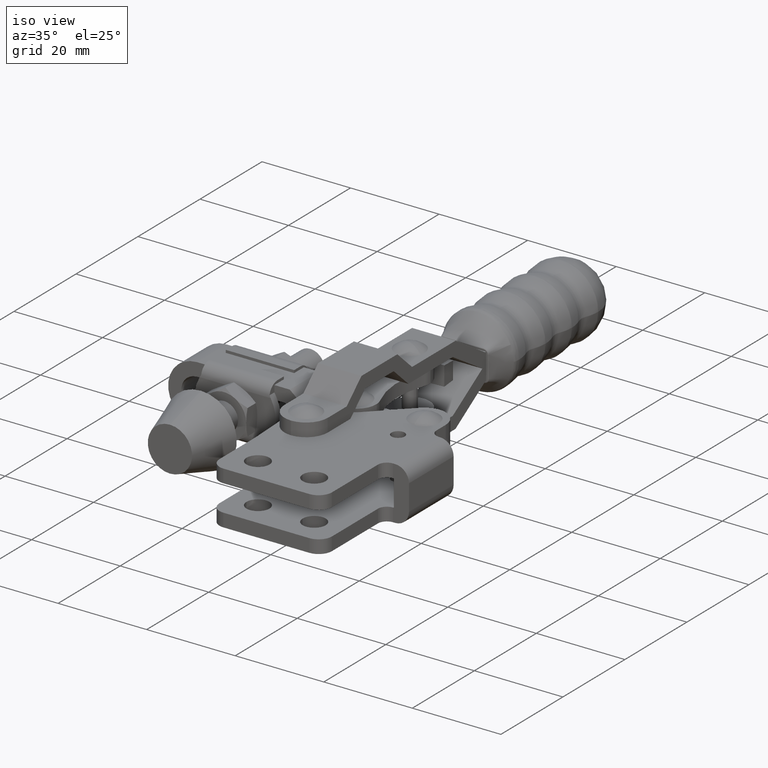
[diagram: clean part render]
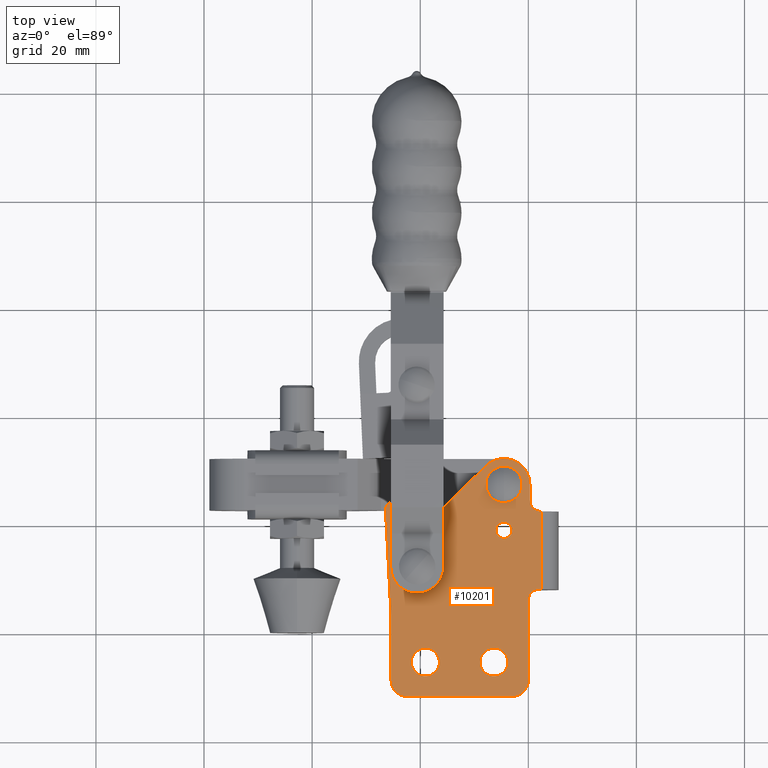
[diagram: tour spotlight — one face highlighted and labeled with its STEP entity id]
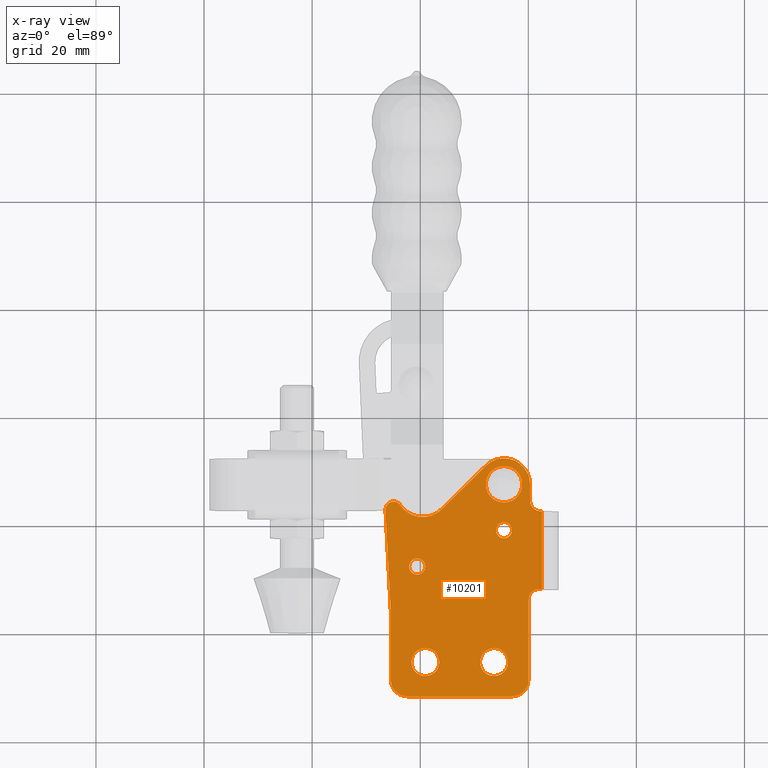
[diagram: x-ray of the same camera — body ghosted, this tour face saturated]
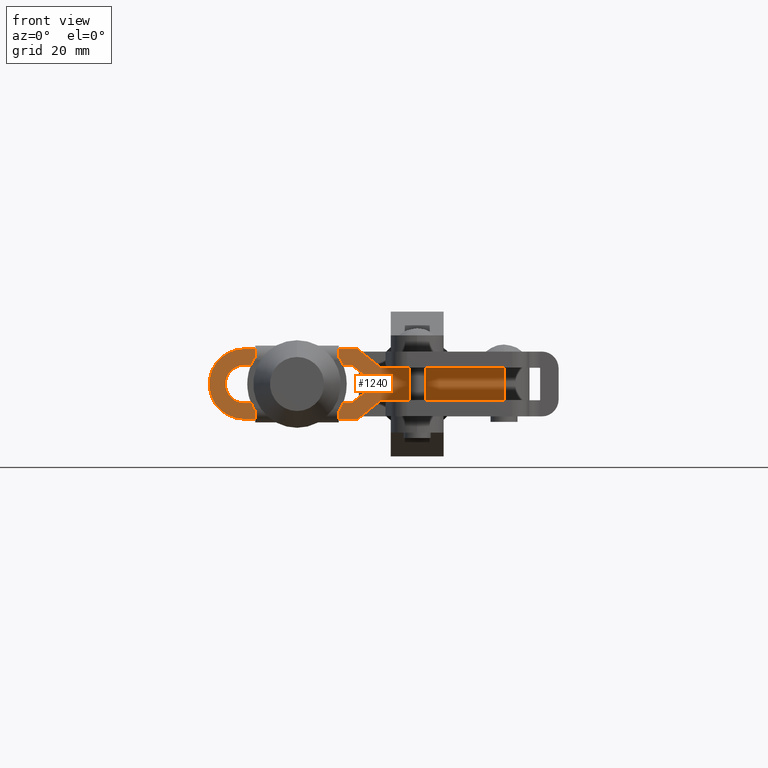
[diagram: tour spotlight — one face highlighted and labeled with its STEP entity id]
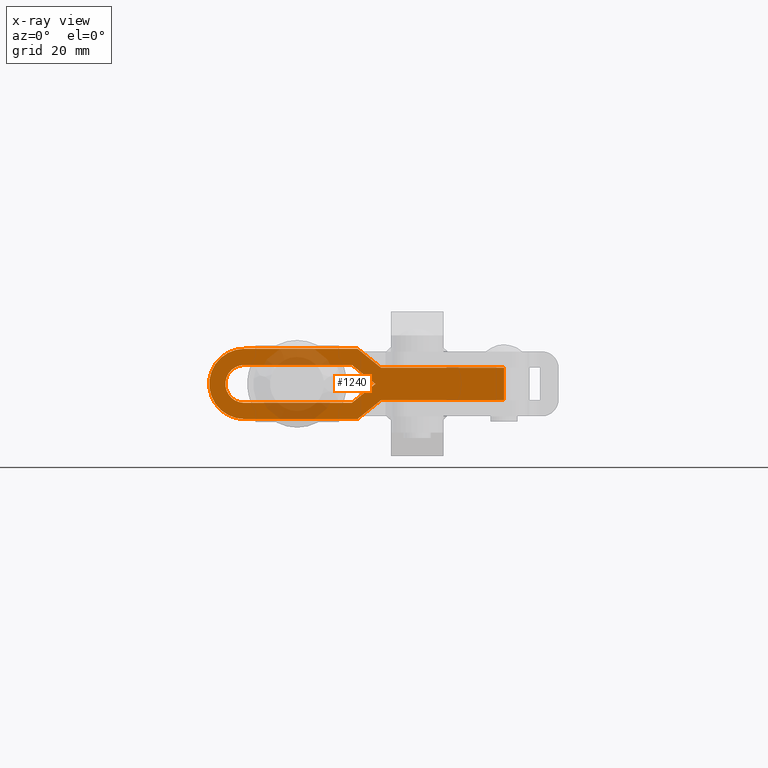
[diagram: x-ray of the same camera — body ghosted, this tour face saturated]
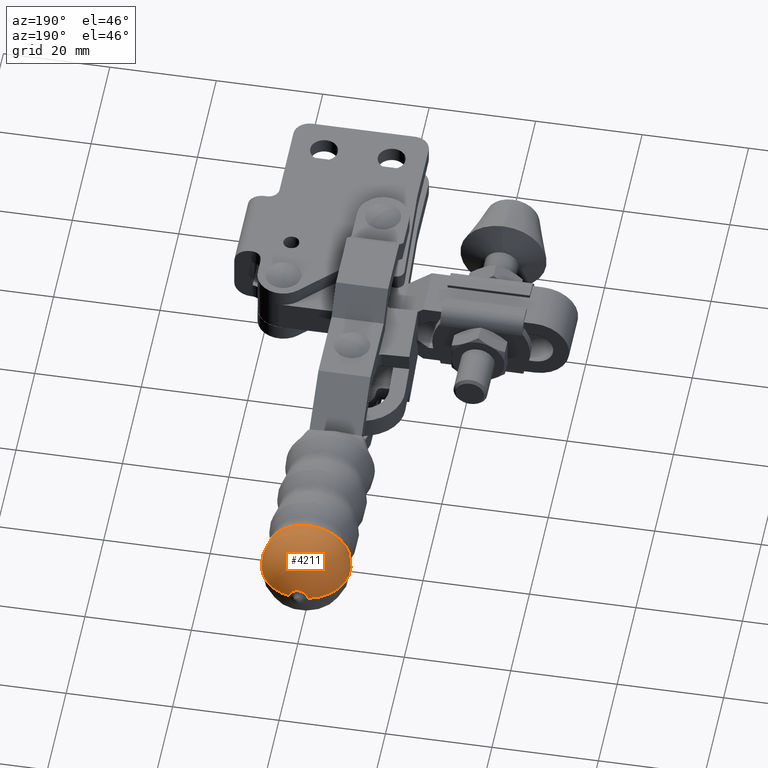
[diagram: tour spotlight — one face highlighted and labeled with its STEP entity id]
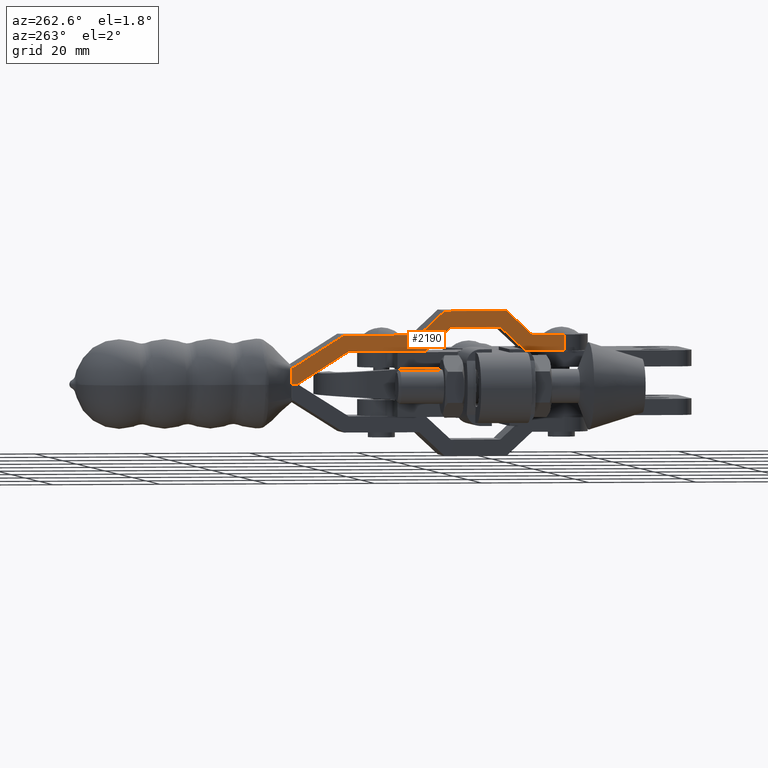
[diagram: tour spotlight — one face highlighted and labeled with its STEP entity id]
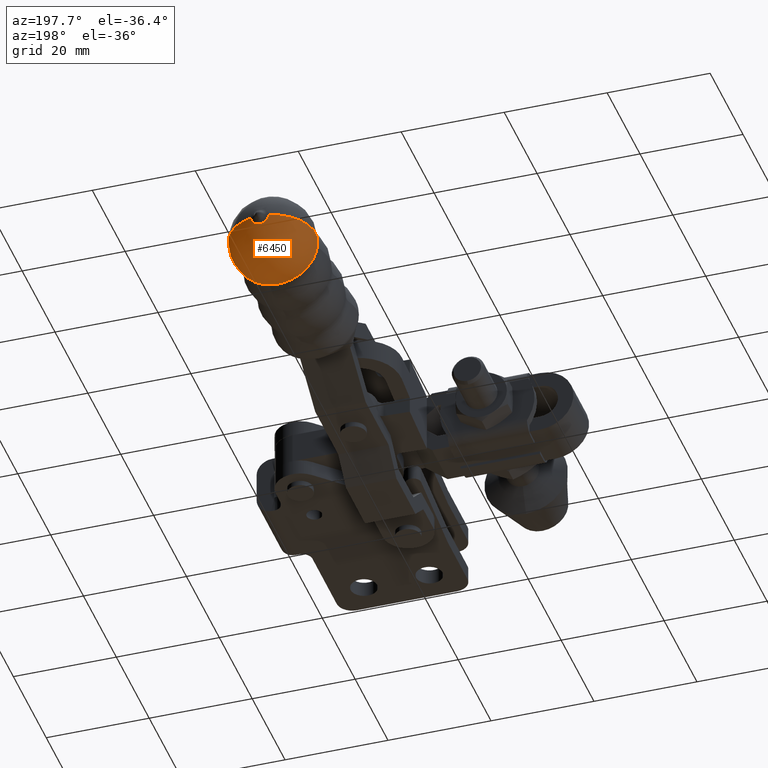
[diagram: tour spotlight — one face highlighted and labeled with its STEP entity id]
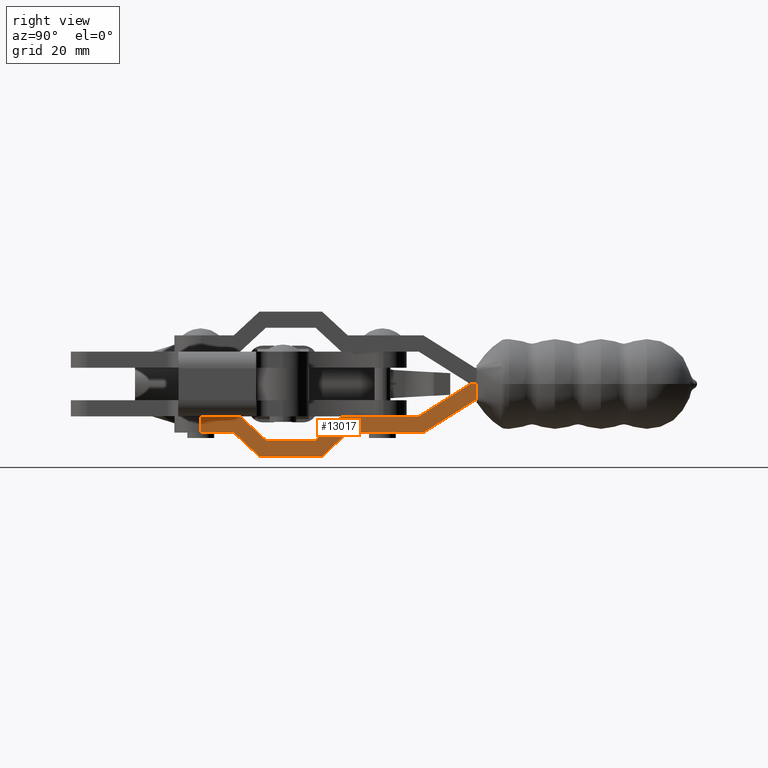
[diagram: tour spotlight — one face highlighted and labeled with its STEP entity id]
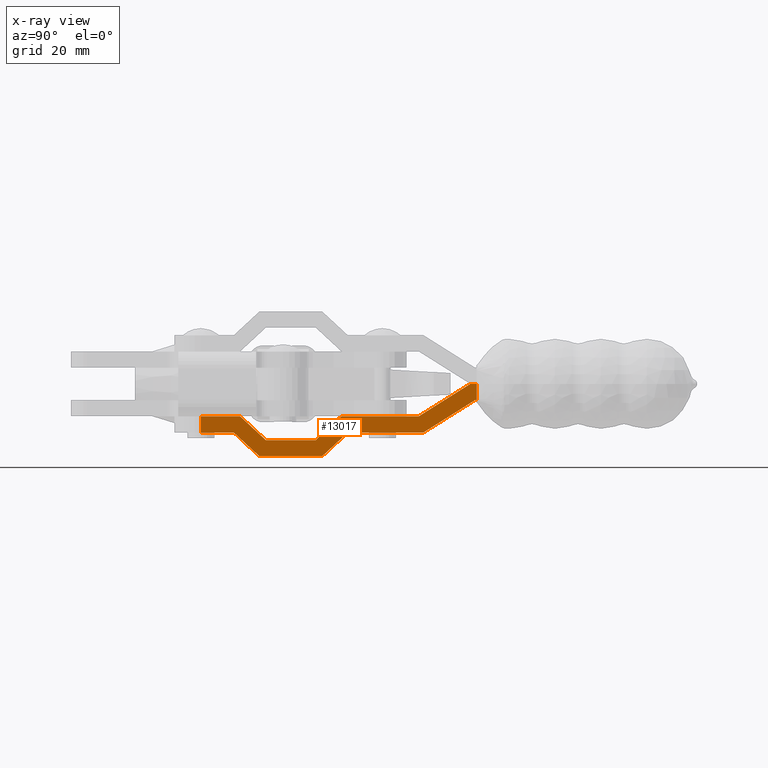
[diagram: x-ray of the same camera — body ghosted, this tour face saturated]
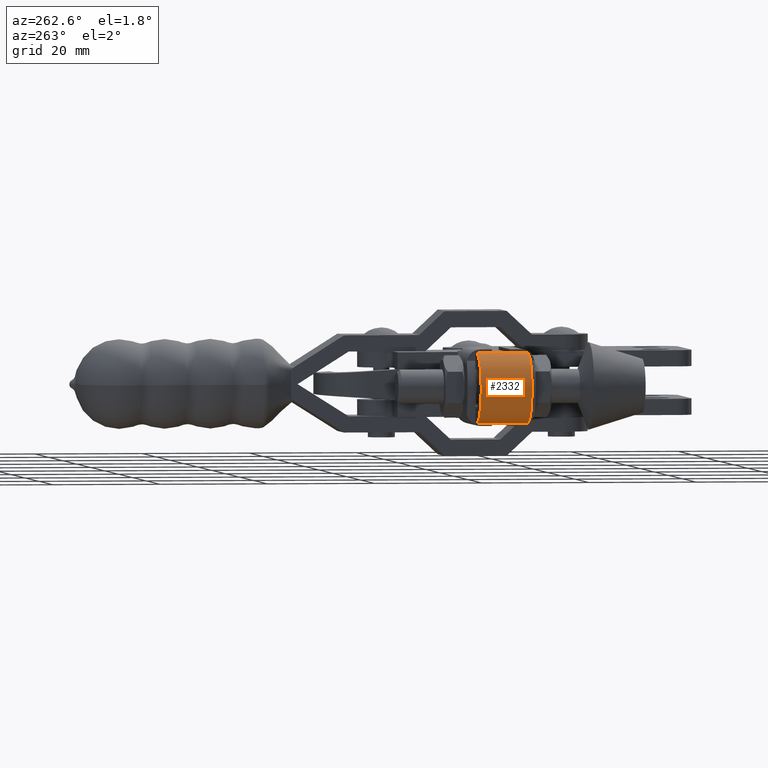
[diagram: tour spotlight — one face highlighted and labeled with its STEP entity id]
A machine part: a face-by-face anatomy tour. The part has 331 B-rep faces; the first image is the clean iso view, then the 7 largest visible faces are spotlighted one at a time (largest first), each with its STEP entity span.

Face 1 — top view, entity #10201. An x-ray twin of the same camera follows (body ghosted, this face saturated) — the face is partly hidden behind the body. In plain terms, the highlighted planar face has unit normal (-0, -0, 1).
Definition (entity closure, byte-faithful):
#78 = ORIENTED_EDGE ( 'NONE', *, *, #9666, .T. ) ;
#83 = DIRECTION ( 'NONE',  ( 1.000000000000000000, 0.0000000000000000000, 3.469446951953635100E-015 ) ) ;
#125 = ORIENTED_EDGE ( 'NONE', *, *, #583, .F. ) ;
#151 = CARTESIAN_POINT ( 'NONE',  ( -8.949999999999498400, -5.449999999999898900, 6.001039891700583200 ) ) ;
#157 = CARTESIAN_POINT ( 'NONE',  ( 4.475586568020162300E-013, 6.050000000000232500, 6.001039891700616900 ) ) ;
#188 = DIRECTION ( 'NONE',  ( 3.613946018757868500E-015, 1.204669080539461900E-016, -1.000000000000000000 ) ) ;
#207 = VECTOR ( 'NONE', #5301, 1000.000000000000100 ) ;
#244 = EDGE_CURVE ( 'NONE', #8299, #10795, #10401, .T. ) ;
#319 = CARTESIAN_POINT ( 'NONE',  ( -26.42049903530773100, 22.67228158241329100, 6.001039891700523700 ) ) ;
#555 = VERTEX_POINT ( 'NONE', #4379 ) ;
#583 = EDGE_CURVE ( 'NONE', #3311, #6089, #8067, .T. ) ;
#631 = AXIS2_PLACEMENT_3D ( 'NONE', #5259, #12788, #5172 ) ;
#695 = CARTESIAN_POINT ( 'NONE',  ( 2.081039891701238700, 8.050000000000233400, 6.001039891700624900 ) ) ;
#704 = CARTESIAN_POINT ( 'NONE',  ( -25.39999999999953000, 3.200000000000049900, 6.001039891700524500 ) ) ;
#915 = EDGE_CURVE ( 'NONE', #10998, #555, #8988, .T. ) ;
#945 = VERTEX_POINT ( 'NONE', #2620 ) ;
#1076 = VERTEX_POINT ( 'NONE', #3292 ) ;
#1111 = EDGE_CURVE ( 'NONE', #12454, #3337, #2672, .T. ) ;
#1135 = CARTESIAN_POINT ( 'NONE',  ( 2.000000000000449400, 6.050000000000232500, 6.001039891700624900 ) ) ;
#1286 = LINE ( 'NONE', #2739, #11806 ) ;
#1455 = EDGE_CURVE ( 'NONE', #10811, #6922, #6034, .T. ) ;
#1525 = CARTESIAN_POINT ( 'NONE',  ( 11.20000000000054600, 6.050000000000260100, 6.001039891700657800 ) ) ;
#1596 = DIRECTION ( 'NONE',  ( 1.000000000000000000, 0.0000000000000000000, 3.469446951953619300E-015 ) ) ;
#1657 = CARTESIAN_POINT ( 'NONE',  ( -19.53999999999950200, 26.39469887254794100, 6.001039891700549400 ) ) ;
#1741 = ORIENTED_EDGE ( 'NONE', *, *, #5555, .T. ) ;
#1744 = CARTESIAN_POINT ( 'NONE',  ( 2.081039891701237800, 22.45000000000006300, 6.001039891700625800 ) ) ;
#1821 = ORIENTED_EDGE ( 'NONE', *, *, #7424, .T. ) ;
#1866 = EDGE_CURVE ( 'NONE', #3168, #3021, #6345, .T. ) ;
#1913 = AXIS2_PLACEMENT_3D ( 'NONE', #1657, #188, #4267 ) ;
#1925 = EDGE_CURVE ( 'NONE', #3173, #2675, #11061, .T. ) ;
#1930 = DIRECTION ( 'NONE',  ( 1.000000000000000000, 0.0000000000000000000, 3.669607353027844400E-015 ) ) ;
#2044 = ORIENTED_EDGE ( 'NONE', *, *, #1866, .T. ) ;
#2060 = VECTOR ( 'NONE', #8840, 1000.000000000000000 ) ;
#2134 = DIRECTION ( 'NONE',  ( -3.613948041024117200E-015, -1.204669080539461900E-016, 1.000000000000000000 ) ) ;
#2196 = CARTESIAN_POINT ( 'NONE',  ( 2.501039891701238200, 22.45000000000006300, 6.001039891700624900 ) ) ;
#2209 = FACE_BOUND ( 'NONE', #12411, .T. ) ;
#2248 = CIRCLE ( 'NONE', #10053, 1.500000000000024000 ) ;
#2316 = ORIENTED_EDGE ( 'NONE', *, *, #7655, .F. ) ;
#2370 = EDGE_LOOP ( 'NONE', ( #2316, #5104 ) ) ;
#2584 = EDGE_LOOP ( 'NONE', ( #125, #11876 ) ) ;
#2592 = DIRECTION ( 'NONE',  ( 1.000000000000000000, -1.204669080539466100E-016, 3.613946018757868500E-015 ) ) ;
#2620 = CARTESIAN_POINT ( 'NONE',  ( 0.3000000000005411700, 27.45000000000009500, 6.001039891700620500 ) ) ;
#2672 = CIRCLE ( 'NONE', #11879, 1.499999999999997800 ) ;
#2675 = VERTEX_POINT ( 'NONE', #8545 ) ;
#2739 = CARTESIAN_POINT ( 'NONE',  ( 2.081039891701238700, 6.050000000000260100, 6.001039891700624900 ) ) ;
#3018 = ORIENTED_EDGE ( 'NONE', *, *, #9895, .F. ) ;
#3021 = VERTEX_POINT ( 'NONE', #10221 ) ;
#3165 = CARTESIAN_POINT ( 'NONE',  ( 2.501039891701239500, 8.050000000000233400, 6.001039891700624900 ) ) ;
#3168 = VERTEX_POINT ( 'NONE', #9450 ) ;
#3173 = VERTEX_POINT ( 'NONE', #10885 ) ;
#3175 = DIRECTION ( 'NONE',  ( 9.093002175972266800E-015, -1.000000000000000000, -1.204669080539133300E-016 ) ) ;
#3187 = DIRECTION ( 'NONE',  ( 1.000000000000000000, 0.0000000000000000000, 3.469446951953611000E-015 ) ) ;
#3218 = VECTOR ( 'NONE', #4407, 1000.000000000000000 ) ;
#3224 = DIRECTION ( 'NONE',  ( -1.000000000000000000, 0.0000000000000000000, -1.224646799147353200E-016 ) ) ;
#3279 = DIRECTION ( 'NONE',  ( -6.008271998254058300E-017, 1.000000000000000000, 1.204669080539459700E-016 ) ) ;
#3292 = CARTESIAN_POINT ( 'NONE',  ( -4.499999999999483100, 24.08696565584005700, 6.001039891700603600 ) ) ;
#3311 = VERTEX_POINT ( 'NONE', #7906 ) ;
#3333 = ORIENTED_EDGE ( 'NONE', *, *, #7054, .T. ) ;
#3337 = VERTEX_POINT ( 'NONE', #319 ) ;
#3361 = CIRCLE ( 'NONE', #5492, 1.999999999999988000 ) ;
#3383 = EDGE_CURVE ( 'NONE', #10795, #7449, #1286, .T. ) ;
#3391 = VERTEX_POINT ( 'NONE', #157 ) ;
#3441 = ORIENTED_EDGE ( 'NONE', *, *, #1925, .T. ) ;
#3452 = DIRECTION ( 'NONE',  ( 1.000000000000000000, 0.0000000000000000000, 3.669607353027841200E-015 ) ) ;
#3489 = DIRECTION ( 'NONE',  ( -3.613946018757868500E-015, -1.204669080539461900E-016, 1.000000000000000000 ) ) ;
#3581 = PLANE ( 'NONE',  #7955 ) ;
#3622 = DIRECTION ( 'NONE',  ( -3.613946018757868500E-015, -1.204669080539461900E-016, 1.000000000000000000 ) ) ;
#3691 = CARTESIAN_POINT ( 'NONE',  ( 2.000000000000450300, 8.050000000000233400, 6.001039891700624900 ) ) ;
#3781 = DIRECTION ( 'NONE',  ( -3.613946018757868500E-015, -1.204669080539461900E-016, 1.000000000000000000 ) ) ;
#3886 = CARTESIAN_POINT ( 'NONE',  ( -7.867654024446814300, 30.87036640897205700, 6.001039891700591200 ) ) ;
#3939 = EDGE_CURVE ( 'NONE', #1076, #10020, #9013, .T. ) ;
#4057 = VECTOR ( 'NONE', #3224, 1000.000000000000000 ) ;
#4090 = DIRECTION ( 'NONE',  ( -3.613946018757868500E-015, -1.204669080539461900E-016, 1.000000000000000000 ) ) ;
#4099 = AXIS2_PLACEMENT_3D ( 'NONE', #11237, #5199, #12251 ) ;
#4160 = AXIS2_PLACEMENT_3D ( 'NONE', #8550, #4476, #12504 ) ;
#4256 = EDGE_CURVE ( 'NONE', #6089, #3311, #4736, .T. ) ;
#4258 = LINE ( 'NONE', #4549, #9337 ) ;
#4267 = DIRECTION ( 'NONE',  ( 1.000000000000000000, 0.0000000000000000000, 3.642919299551281500E-015 ) ) ;
#4292 = ORIENTED_EDGE ( 'NONE', *, *, #10456, .T. ) ;
#4341 = AXIS2_PLACEMENT_3D ( 'NONE', #9276, #2134, #12306 ) ;
#4350 = CARTESIAN_POINT ( 'NONE',  ( -2.999999999999473800, 18.95000000000006300, 6.001039891700608000 ) ) ;
#4370 = DIRECTION ( 'NONE',  ( -3.613946018757868500E-015, -1.204669080539461900E-016, 1.000000000000000000 ) ) ;
#4379 = CARTESIAN_POINT ( 'NONE',  ( -3.749999999999470200, -5.449999999999899800, 6.001039891700601800 ) ) ;
#4383 = ORIENTED_EDGE ( 'NONE', *, *, #13088, .F. ) ;
#4407 = DIRECTION ( 'NONE',  ( 1.000000000000000000, 1.609537245751679200E-015, 3.609795379043373300E-015 ) ) ;
#4469 = EDGE_LOOP ( 'NONE', ( #3018, #6361 ) ) ;
#4476 = DIRECTION ( 'NONE',  ( -3.613946018757868500E-015, -1.204669080539461900E-016, 1.000000000000000000 ) ) ;
#4519 = VERTEX_POINT ( 'NONE', #5317 ) ;
#4549 = CARTESIAN_POINT ( 'NONE',  ( 4.475586568020162300E-013, 6.050000000000232500, 6.001039891700616900 ) ) ;
#4576 = EDGE_CURVE ( 'NONE', #5651, #10276, #6799, .T. ) ;
#4671 = EDGE_CURVE ( 'NONE', #555, #10998, #9139, .T. ) ;
#4675 = ORIENTED_EDGE ( 'NONE', *, *, #5537, .T. ) ;
#4736 = CIRCLE ( 'NONE', #4341, 1.500000000000001300 ) ;
#4739 = CARTESIAN_POINT ( 'NONE',  ( -22.39999999999941200, -11.79999999999992300, 6.001039891700534300 ) ) ;
#4787 = AXIS2_PLACEMENT_3D ( 'NONE', #12575, #10007, #9007 ) ;
#4830 = LINE ( 'NONE', #3691, #2060 ) ;
#4878 = CARTESIAN_POINT ( 'NONE',  ( 2.501039891701239500, 22.45000000000006300, 6.001039891700624900 ) ) ;
#4932 = VECTOR ( 'NONE', #5895, 1000.000000000000000 ) ;
#4959 = FACE_OUTER_BOUND ( 'NONE', #8425, .T. ) ;
#5101 = VECTOR ( 'NONE', #5437, 1000.000000000000000 ) ;
#5104 = ORIENTED_EDGE ( 'NONE', *, *, #6639, .F. ) ;
#5172 = DIRECTION ( 'NONE',  ( 1.000000000000000000, 0.0000000000000000000, 3.469446951953611000E-015 ) ) ;
#5199 = DIRECTION ( 'NONE',  ( -3.613946018757868500E-015, -1.204669080539461900E-016, 1.000000000000000000 ) ) ;
#5218 = DIRECTION ( 'NONE',  ( -3.613946018757868500E-015, -1.204669080539461900E-016, 1.000000000000000000 ) ) ;
#5243 = LINE ( 'NONE', #4878, #4932 ) ;
#5259 = CARTESIAN_POINT ( 'NONE',  ( -2.999999999999444000, -8.799999999999885200, 6.001039891700604500 ) ) ;
#5301 = DIRECTION ( 'NONE',  ( -0.7125763352024931900, -0.7015945884265242200, -2.659731340441247100E-015 ) ) ;
#5317 = CARTESIAN_POINT ( 'NONE',  ( 0.3000000000005836300, 24.45000000000009200, 6.001039891700620500 ) ) ;
#5364 = AXIS2_PLACEMENT_3D ( 'NONE', #9745, #7728, #3187 ) ;
#5437 = DIRECTION ( 'NONE',  ( 1.204669080539461700E-016, 1.000000000000000000, 1.204669080539466400E-016 ) ) ;
#5492 = AXIS2_PLACEMENT_3D ( 'NONE', #12293, #6280, #83 ) ;
#5537 = EDGE_CURVE ( 'NONE', #2675, #3168, #8636, .T. ) ;
#5555 = EDGE_CURVE ( 'NONE', #3391, #9748, #10046, .T. ) ;
#5651 = VERTEX_POINT ( 'NONE', #3165 ) ;
#5751 = AXIS2_PLACEMENT_3D ( 'NONE', #11262, #5218, #12276 ) ;
#5787 = ORIENTED_EDGE ( 'NONE', *, *, #10747, .F. ) ;
#5803 = DIRECTION ( 'NONE',  ( 1.000000000000000000, 0.0000000000000000000, 3.669607353027844400E-015 ) ) ;
#5895 = DIRECTION ( 'NONE',  ( -1.183291357831517700E-030, -1.000000000000000000, 8.961354157610672400E-033 ) ) ;
#5913 = VECTOR ( 'NONE', #6170, 1000.000000000000000 ) ;
#6034 = LINE ( 'NONE', #9152, #207 ) ;
#6089 = VERTEX_POINT ( 'NONE', #8554 ) ;
#6170 = DIRECTION ( 'NONE',  ( 0.05233595624293695100, -0.9986295347545742800, 6.883750835881365700E-017 ) ) ;
#6280 = DIRECTION ( 'NONE',  ( 3.613946018757868500E-015, 1.204669080539461900E-016, -1.000000000000000000 ) ) ;
#6320 = CARTESIAN_POINT ( 'NONE',  ( -4.499999999999512400, 30.81303434416014000, 6.001039891700603600 ) ) ;
#6345 = CIRCLE ( 'NONE', #631, 3.000000000000002700 ) ;
#6361 = ORIENTED_EDGE ( 'NONE', *, *, #3939, .F. ) ;
#6398 = EDGE_CURVE ( 'NONE', #6722, #3173, #12069, .T. ) ;
#6449 = EDGE_LOOP ( 'NONE', ( #8628, #4383 ) ) ;
#6463 = CARTESIAN_POINT ( 'NONE',  ( 2.501039891701238200, 8.050000000000233400, 6.001039891700624900 ) ) ;
#6639 = EDGE_CURVE ( 'NONE', #12983, #12208, #8768, .T. ) ;
#6722 = VERTEX_POINT ( 'NONE', #704 ) ;
#6746 = CARTESIAN_POINT ( 'NONE',  ( -24.92255473317588300, 22.75078551677769000, 6.001039891700529000 ) ) ;
#6752 = AXIS2_PLACEMENT_3D ( 'NONE', #9393, #3489, #3452 ) ;
#6799 = LINE ( 'NONE', #6463, #4057 ) ;
#6922 = VERTEX_POINT ( 'NONE', #8762 ) ;
#7054 = EDGE_CURVE ( 'NONE', #4519, #945, #7814, .T. ) ;
#7424 = EDGE_CURVE ( 'NONE', #6922, #12454, #11573, .T. ) ;
#7449 = VERTEX_POINT ( 'NONE', #10230 ) ;
#7494 = ORIENTED_EDGE ( 'NONE', *, *, #4576, .F. ) ;
#7655 = EDGE_CURVE ( 'NONE', #12208, #12983, #11870, .T. ) ;
#7728 = DIRECTION ( 'NONE',  ( -3.613948041024117200E-015, -1.204669080539461900E-016, 1.000000000000000000 ) ) ;
#7729 = CARTESIAN_POINT ( 'NONE',  ( -16.44999999999951600, -5.449999999999898000, 6.001039891700556500 ) ) ;
#7738 = CARTESIAN_POINT ( 'NONE',  ( -19.04999999999952800, -5.449999999999898000, 6.001039891700547600 ) ) ;
#7750 = DIRECTION ( 'NONE',  ( -3.613946018757868500E-015, -1.204669080539461900E-016, 1.000000000000000000 ) ) ;
#7763 = VECTOR ( 'NONE', #12356, 1000.000000000000000 ) ;
#7764 = DIRECTION ( 'NONE',  ( 1.000000000000000000, 0.0000000000000000000, 3.669607353027841200E-015 ) ) ;
#7814 = LINE ( 'NONE', #9685, #5101 ) ;
#7819 = EDGE_CURVE ( 'NONE', #3021, #3391, #4258, .T. ) ;
#7906 = CARTESIAN_POINT ( 'NONE',  ( -19.06037234350177200, 12.23344415514951100, 6.001039891700549400 ) ) ;
#7910 = CARTESIAN_POINT ( 'NONE',  ( -5.999999999999521300, 18.95000000000006300, 6.001039891700597400 ) ) ;
#7955 = AXIS2_PLACEMENT_3D ( 'NONE', #1525, #8693, #2592 ) ;
#7977 = FACE_BOUND ( 'NONE', #4469, .T. ) ;
#8067 = CIRCLE ( 'NONE', #5364, 1.500000000000001300 ) ;
#8154 = VERTEX_POINT ( 'NONE', #7910 ) ;
#8269 = AXIS2_PLACEMENT_3D ( 'NONE', #1135, #12434, #8616 ) ;
#8299 = VERTEX_POINT ( 'NONE', #13112 ) ;
#8330 = ORIENTED_EDGE ( 'NONE', *, *, #6398, .T. ) ;
#8425 = EDGE_LOOP ( 'NONE', ( #3441, #4675, #2044, #8925, #1741, #78, #7494, #5787, #8868, #12665, #9646, #3333, #10512, #10329, #1821, #12573, #4292, #8330 ) ) ;
#8545 = CARTESIAN_POINT ( 'NONE',  ( -22.39999999999941200, -11.79999999999992300, 6.001039891700534300 ) ) ;
#8550 = CARTESIAN_POINT ( 'NONE',  ( -4.499999999999497300, 27.45000000000009900, 6.001039891700603600 ) ) ;
#8554 = CARTESIAN_POINT ( 'NONE',  ( -22.06037234350177600, 12.23344415514951000, 6.001039891700538800 ) ) ;
#8616 = DIRECTION ( 'NONE',  ( 1.000000000000000000, 0.0000000000000000000, 3.469446951953611000E-015 ) ) ;
#8628 = ORIENTED_EDGE ( 'NONE', *, *, #12979, .F. ) ;
#8636 = LINE ( 'NONE', #4739, #3218 ) ;
#8667 = CARTESIAN_POINT ( 'NONE',  ( -23.68042671782749800, 23.59168859887851300, 6.001039891700533400 ) ) ;
#8693 = DIRECTION ( 'NONE',  ( -3.613946018757868500E-015, -1.204669080539461900E-016, 1.000000000000000000 ) ) ;
#8762 = CARTESIAN_POINT ( 'NONE',  ( -16.03202705786687000, 22.83181719653546100, 6.001039891700561000 ) ) ;
#8768 = CIRCLE ( 'NONE', #10668, 2.600000000000012100 ) ;
#8840 = DIRECTION ( 'NONE',  ( 1.000000000000000000, -1.204669080539466100E-016, 3.613946018757868500E-015 ) ) ;
#8868 = ORIENTED_EDGE ( 'NONE', *, *, #244, .T. ) ;
#8925 = ORIENTED_EDGE ( 'NONE', *, *, #7819, .T. ) ;
#8988 = CIRCLE ( 'NONE', #6752, 2.600000000000014300 ) ;
#9007 = DIRECTION ( 'NONE',  ( 1.000000000000000000, 0.0000000000000000000, 3.469446951953611000E-015 ) ) ;
#9013 = CIRCLE ( 'NONE', #4160, 3.363034344160041700 ) ;
#9085 = CIRCLE ( 'NONE', #4099, 3.363034344160041700 ) ;
#9139 = CIRCLE ( 'NONE', #12900, 2.600000000000014300 ) ;
#9152 = CARTESIAN_POINT ( 'NONE',  ( -16.03202705786687000, 22.83181719653546100, 6.001039891700561000 ) ) ;
#9276 = CARTESIAN_POINT ( 'NONE',  ( -20.56037234350177200, 12.23344415514951100, 6.001039891700544100 ) ) ;
#9337 = VECTOR ( 'NONE', #12692, 1000.000000000000000 ) ;
#9393 = CARTESIAN_POINT ( 'NONE',  ( -6.349999999999484500, -5.449999999999899800, 6.001039891700592000 ) ) ;
#9450 = CARTESIAN_POINT ( 'NONE',  ( -2.999999999999444000, -11.79999999999989100, 6.001039891700604500 ) ) ;
#9646 = ORIENTED_EDGE ( 'NONE', *, *, #9925, .T. ) ;
#9666 = EDGE_CURVE ( 'NONE', #9748, #10276, #4830, .T. ) ;
#9685 = CARTESIAN_POINT ( 'NONE',  ( 0.3000000000005836300, 27.45000000000009500, 6.001039891700620500 ) ) ;
#9745 = CARTESIAN_POINT ( 'NONE',  ( -20.56037234350177200, 12.23344415514951100, 6.001039891700544100 ) ) ;
#9748 = VERTEX_POINT ( 'NONE', #12920 ) ;
#9839 = CARTESIAN_POINT ( 'NONE',  ( -4.499999999999497300, 18.95000000000006300, 6.001039891700602700 ) ) ;
#9895 = EDGE_CURVE ( 'NONE', #10020, #1076, #9085, .T. ) ;
#9925 = EDGE_CURVE ( 'NONE', #7449, #4519, #3361, .T. ) ;
#9997 = LINE ( 'NONE', #12173, #5913 ) ;
#9999 = ORIENTED_EDGE ( 'NONE', *, *, #915, .F. ) ;
#10007 = DIRECTION ( 'NONE',  ( -3.613948041024120400E-015, -1.204669080539462900E-016, 1.000000000000000000 ) ) ;
#10008 = FACE_BOUND ( 'NONE', #2370, .T. ) ;
#10020 = VERTEX_POINT ( 'NONE', #6320 ) ;
#10046 = CIRCLE ( 'NONE', #8269, 2.000000000000001800 ) ;
#10053 = AXIS2_PLACEMENT_3D ( 'NONE', #9839, #3781, #10859 ) ;
#10201 = ADVANCED_FACE ( 'NONE', ( #10307, #12683, #10008, #2209, #7977, #4959 ), #3581, .T. ) ;
#10221 = CARTESIAN_POINT ( 'NONE',  ( 5.577135975265434800E-013, -8.799999999999890600, 6.001039891700615100 ) ) ;
#10230 = CARTESIAN_POINT ( 'NONE',  ( 2.081039891701236900, 22.46202201446466200, 6.001039891700625800 ) ) ;
#10276 = VERTEX_POINT ( 'NONE', #695 ) ;
#10294 = AXIS2_PLACEMENT_3D ( 'NONE', #10407, #4370, #11450 ) ;
#10307 = FACE_BOUND ( 'NONE', #2584, .T. ) ;
#10329 = ORIENTED_EDGE ( 'NONE', *, *, #1455, .T. ) ;
#10401 = LINE ( 'NONE', #2196, #7763 ) ;
#10407 = CARTESIAN_POINT ( 'NONE',  ( -4.499999999999497300, 27.45000000000009500, 6.001039891700603600 ) ) ;
#10456 = EDGE_CURVE ( 'NONE', #3337, #6722, #9997, .T. ) ;
#10512 = ORIENTED_EDGE ( 'NONE', *, *, #11042, .T. ) ;
#10661 = CARTESIAN_POINT ( 'NONE',  ( -21.64999999999954000, -5.449999999999897100, 6.001039891700537900 ) ) ;
#10668 = AXIS2_PLACEMENT_3D ( 'NONE', #7738, #3622, #5803 ) ;
#10747 = EDGE_CURVE ( 'NONE', #8299, #5651, #5243, .T. ) ;
#10795 = VERTEX_POINT ( 'NONE', #1744 ) ;
#10811 = VERTEX_POINT ( 'NONE', #3886 ) ;
#10859 = DIRECTION ( 'NONE',  ( 1.000000000000000000, 0.0000000000000000000, 3.469446951953558600E-015 ) ) ;
#10885 = CARTESIAN_POINT ( 'NONE',  ( -25.39999999999941900, -8.799999999999917200, 6.001039891700523700 ) ) ;
#10998 = VERTEX_POINT ( 'NONE', #151 ) ;
#11042 = EDGE_CURVE ( 'NONE', #945, #10811, #13116, .T. ) ;
#11061 = CIRCLE ( 'NONE', #4787, 3.000000000000002700 ) ;
#11143 = CIRCLE ( 'NONE', #5751, 1.500000000000024000 ) ;
#11237 = CARTESIAN_POINT ( 'NONE',  ( -4.499999999999497300, 27.45000000000009900, 6.001039891700603600 ) ) ;
#11262 = CARTESIAN_POINT ( 'NONE',  ( -4.499999999999497300, 18.95000000000006300, 6.001039891700602700 ) ) ;
#11450 = DIRECTION ( 'NONE',  ( 1.000000000000000000, 0.0000000000000000000, 3.614007241618318400E-015 ) ) ;
#11573 = CIRCLE ( 'NONE', #1913, 5.000000000000018700 ) ;
#11596 = ORIENTED_EDGE ( 'NONE', *, *, #4671, .F. ) ;
#11603 = VERTEX_POINT ( 'NONE', #4350 ) ;
#11747 = CARTESIAN_POINT ( 'NONE',  ( -6.349999999999484500, -5.449999999999899800, 6.001039891700592000 ) ) ;
#11767 = VECTOR ( 'NONE', #3175, 1000.000000000000000 ) ;
#11806 = VECTOR ( 'NONE', #3279, 1000.000000000000000 ) ;
#11870 = CIRCLE ( 'NONE', #12548, 2.600000000000012100 ) ;
#11876 = ORIENTED_EDGE ( 'NONE', *, *, #4256, .F. ) ;
#11879 = AXIS2_PLACEMENT_3D ( 'NONE', #6746, #7750, #1596 ) ;
#12069 = LINE ( 'NONE', #12583, #11767 ) ;
#12173 = CARTESIAN_POINT ( 'NONE',  ( -25.39999999999953000, 3.200000000000049900, 6.001039891700524500 ) ) ;
#12208 = VERTEX_POINT ( 'NONE', #7729 ) ;
#12251 = DIRECTION ( 'NONE',  ( 1.000000000000000000, 0.0000000000000000000, 3.610746453697167400E-015 ) ) ;
#12267 = CARTESIAN_POINT ( 'NONE',  ( -19.04999999999952800, -5.449999999999898000, 6.001039891700547600 ) ) ;
#12276 = DIRECTION ( 'NONE',  ( 1.000000000000000000, 0.0000000000000000000, 3.469446951953558600E-015 ) ) ;
#12293 = CARTESIAN_POINT ( 'NONE',  ( 2.300000000000530100, 24.45000000000009200, 6.001039891700627600 ) ) ;
#12306 = DIRECTION ( 'NONE',  ( 1.000000000000000000, 0.0000000000000000000, 3.469446951953611000E-015 ) ) ;
#12356 = DIRECTION ( 'NONE',  ( -1.000000000000000000, 0.0000000000000000000, -1.224646799147353200E-016 ) ) ;
#12411 = EDGE_LOOP ( 'NONE', ( #11596, #9999 ) ) ;
#12434 = DIRECTION ( 'NONE',  ( 3.613946018757868500E-015, 1.204669080539461900E-016, -1.000000000000000000 ) ) ;
#12454 = VERTEX_POINT ( 'NONE', #8667 ) ;
#12504 = DIRECTION ( 'NONE',  ( 1.000000000000000000, 0.0000000000000000000, 3.610746453697167400E-015 ) ) ;
#12548 = AXIS2_PLACEMENT_3D ( 'NONE', #12267, #4090, #1930 ) ;
#12573 = ORIENTED_EDGE ( 'NONE', *, *, #1111, .T. ) ;
#12575 = CARTESIAN_POINT ( 'NONE',  ( -22.39999999999941600, -8.799999999999919000, 6.001039891700534300 ) ) ;
#12583 = CARTESIAN_POINT ( 'NONE',  ( -25.39999999999953000, 3.200000000000049900, 6.001039891700524500 ) ) ;
#12665 = ORIENTED_EDGE ( 'NONE', *, *, #3383, .T. ) ;
#12683 = FACE_BOUND ( 'NONE', #6449, .T. ) ;
#12692 = DIRECTION ( 'NONE',  ( -7.330694331040996600E-015, 1.000000000000000000, 1.204669080539197200E-016 ) ) ;
#12788 = DIRECTION ( 'NONE',  ( -3.613948041024120400E-015, -1.204669080539462900E-016, 1.000000000000000000 ) ) ;
#12900 = AXIS2_PLACEMENT_3D ( 'NONE', #11747, #12963, #7764 ) ;
#12920 = CARTESIAN_POINT ( 'NONE',  ( 2.000000000000450300, 8.050000000000233400, 6.001039891700624900 ) ) ;
#12963 = DIRECTION ( 'NONE',  ( -3.613946018757868500E-015, -1.204669080539461900E-016, 1.000000000000000000 ) ) ;
#12979 = EDGE_CURVE ( 'NONE', #11603, #8154, #2248, .T. ) ;
#12983 = VERTEX_POINT ( 'NONE', #10661 ) ;
#13088 = EDGE_CURVE ( 'NONE', #8154, #11603, #11143, .T. ) ;
#13112 = CARTESIAN_POINT ( 'NONE',  ( 2.501039891701239500, 22.45000000000006300, 6.001039891700624900 ) ) ;
#13116 = CIRCLE ( 'NONE', #10294, 4.800000000000039800 ) ;

Face 2 — front view, entity #1240. An x-ray twin of the same camera follows (body ghosted, this face saturated) — the face is partly hidden behind the body. In plain terms, the highlighted planar face has unit normal (0, 1, 0).
Definition (entity closure, byte-faithful):
#34 = CARTESIAN_POINT ( 'NONE',  ( -59.04999999999950000, 22.70000000000012400, -3.000000000000061700 ) ) ;
#46 = VERTEX_POINT ( 'NONE', #6856 ) ;
#288 = EDGE_CURVE ( 'NONE', #7272, #5203, #5054, .T. ) ;
#321 = EDGE_CURVE ( 'NONE', #5902, #1230, #2321, .T. ) ;
#598 = EDGE_CURVE ( 'NONE', #6059, #2030, #2952, .T. ) ;
#724 = CARTESIAN_POINT ( 'NONE',  ( -34.83422535211248300, 22.70000000000012400, -5.000000004330526700E-005 ) ) ;
#869 = EDGE_CURVE ( 'NONE', #3364, #8316, #4217, .T. ) ;
#1045 = CARTESIAN_POINT ( 'NONE',  ( -52.54999999999941500, 22.70000000000012400, 6.500000000000040000 ) ) ;
#1154 = DIRECTION ( 'NONE',  ( -1.000000000000000000, 0.0000000000000000000, -5.230322038121027200E-016 ) ) ;
#1230 = VERTEX_POINT ( 'NONE', #10814 ) ;
#1240 = ADVANCED_FACE ( 'NONE', ( #4438 ), #2693, .F. ) ;
#1351 = LINE ( 'NONE', #12482, #6529 ) ;
#1367 = EDGE_CURVE ( 'NONE', #7325, #2030, #4603, .T. ) ;
#1392 = ORIENTED_EDGE ( 'NONE', *, *, #3282, .T. ) ;
#1491 = VECTOR ( 'NONE', #4229, 1000.000000000000000 ) ;
#1521 = EDGE_CURVE ( 'NONE', #12542, #8483, #1351, .T. ) ;
#1785 = DIRECTION ( 'NONE',  ( 0.0000000000000000000, -0.0000000000000000000, 1.000000000000000000 ) ) ;
#1862 = VECTOR ( 'NONE', #3930, 1000.000000000000000 ) ;
#1868 = CARTESIAN_POINT ( 'NONE',  ( -4.499999999999476900, 22.70000000000012400, -5.000000004330526700E-005 ) ) ;
#2030 = VERTEX_POINT ( 'NONE', #7914 ) ;
#2049 = CIRCLE ( 'NONE', #10242, 3.500000000000044900 ) ;
#2152 = EDGE_CURVE ( 'NONE', #5203, #46, #7289, .T. ) ;
#2295 = CARTESIAN_POINT ( 'NONE',  ( -27.24999999999974800, 22.70000000000012400, -3.000000000000064400 ) ) ;
#2321 = LINE ( 'NONE', #9420, #4403 ) ;
#2365 = VERTEX_POINT ( 'NONE', #5661 ) ;
#2377 = CARTESIAN_POINT ( 'NONE',  ( -52.54999999999941500, 22.70000000000012400, 3.402667251023065300E-014 ) ) ;
#2437 = ORIENTED_EDGE ( 'NONE', *, *, #1521, .T. ) ;
#2457 = CARTESIAN_POINT ( 'NONE',  ( -4.499999999999476900, 22.70000000000012400, 6.499999999999952000 ) ) ;
#2693 = PLANE ( 'NONE',  #7590 ) ;
#2759 = CARTESIAN_POINT ( 'NONE',  ( -52.54999999999941500, 22.70000000000012400, 3.402667251023065300E-014 ) ) ;
#2848 = CARTESIAN_POINT ( 'NONE',  ( -4.499999999999476900, 22.70000000000012400, 6.499999999999952000 ) ) ;
#2952 = LINE ( 'NONE', #11761, #13077 ) ;
#3159 = AXIS2_PLACEMENT_3D ( 'NONE', #2759, #9821, #9982 ) ;
#3282 = EDGE_CURVE ( 'NONE', #3364, #6620, #12269, .T. ) ;
#3364 = VERTEX_POINT ( 'NONE', #1868 ) ;
#3385 = EDGE_CURVE ( 'NONE', #6059, #9391, #4363, .T. ) ;
#3430 = CARTESIAN_POINT ( 'NONE',  ( -27.24999999999975100, 22.70000000000012400, 2.999999999999975600 ) ) ;
#3495 = DIRECTION ( 'NONE',  ( -0.0000000000000000000, -0.0000000000000000000, -1.000000000000000000 ) ) ;
#3656 = ORIENTED_EDGE ( 'NONE', *, *, #869, .F. ) ;
#3659 = DIRECTION ( 'NONE',  ( 1.000000000000000000, 0.0000000000000000000, 0.0000000000000000000 ) ) ;
#3677 = CARTESIAN_POINT ( 'NONE',  ( -28.30877065937106700, 22.70000000000012400, -5.000000004352210700E-005 ) ) ;
#3693 = CARTESIAN_POINT ( 'NONE',  ( -59.04999999999950000, 22.70000000000012400, 6.499999999999952000 ) ) ;
#3930 = DIRECTION ( 'NONE',  ( -0.0000000000000000000, -0.0000000000000000000, -1.000000000000000000 ) ) ;
#4056 = DIRECTION ( 'NONE',  ( -0.7785042881960010400, 0.0000000000000000000, -0.6276392859441144400 ) ) ;
#4140 = LINE ( 'NONE', #4439, #7824 ) ;
#4217 = LINE ( 'NONE', #2457, #6959 ) ;
#4229 = DIRECTION ( 'NONE',  ( 1.000000000000000000, 0.0000000000000000000, -2.680936281055041100E-016 ) ) ;
#4274 = DIRECTION ( 'NONE',  ( -1.000000000000000000, -0.0000000000000000000, -0.0000000000000000000 ) ) ;
#4363 = CIRCLE ( 'NONE', #3159, 6.500000000000076400 ) ;
#4373 = CARTESIAN_POINT ( 'NONE',  ( -48.23316143473485300, 22.70000000000012400, 19.91687079883043400 ) ) ;
#4403 = VECTOR ( 'NONE', #12446, 1000.000000000000000 ) ;
#4438 = FACE_OUTER_BOUND ( 'NONE', #6130, .T. ) ;
#4439 = CARTESIAN_POINT ( 'NONE',  ( -34.83422535211248300, 22.70000000000012400, 4.999999995696821500E-005 ) ) ;
#4440 = ORIENTED_EDGE ( 'NONE', *, *, #3385, .F. ) ;
#4603 = LINE ( 'NONE', #9637, #12330 ) ;
#4612 = LINE ( 'NONE', #2848, #1862 ) ;
#4666 = CARTESIAN_POINT ( 'NONE',  ( -50.11607929256685200, 22.70000000000012400, 17.58135793424258600 ) ) ;
#4717 = VECTOR ( 'NONE', #10696, 1000.000000000000100 ) ;
#4803 = ORIENTED_EDGE ( 'NONE', *, *, #288, .F. ) ;
#4907 = EDGE_CURVE ( 'NONE', #6620, #12542, #8341, .T. ) ;
#4982 = ORIENTED_EDGE ( 'NONE', *, *, #9424, .F. ) ;
#4991 = LINE ( 'NONE', #9270, #10040 ) ;
#5054 = LINE ( 'NONE', #4373, #7436 ) ;
#5189 = DIRECTION ( 'NONE',  ( -1.000000000000000000, 0.0000000000000000000, -1.577021341797083600E-017 ) ) ;
#5203 = VERTEX_POINT ( 'NONE', #3430 ) ;
#5655 = VECTOR ( 'NONE', #12796, 1000.000000000000000 ) ;
#5661 = CARTESIAN_POINT ( 'NONE',  ( -4.499999999999476900, 22.70000000000012400, 4.999999994946586800E-005 ) ) ;
#5800 = DIRECTION ( 'NONE',  ( 0.0000000000000000000, 1.000000000000000000, 0.0000000000000000000 ) ) ;
#5902 = VERTEX_POINT ( 'NONE', #7957 ) ;
#6059 = VERTEX_POINT ( 'NONE', #6402 ) ;
#6130 = EDGE_LOOP ( 'NONE', ( #3656, #1392, #10145, #2437, #8137, #7419, #7517, #10342, #9581, #12089, #4803, #4982, #4440, #7022, #12864, #12688 ) ) ;
#6234 = DIRECTION ( 'NONE',  ( 1.000000000000000000, 0.0000000000000000000, 0.0000000000000000000 ) ) ;
#6402 = CARTESIAN_POINT ( 'NONE',  ( -52.54999999999941500, 22.70000000000012400, -6.500000000000112800 ) ) ;
#6510 = EDGE_CURVE ( 'NONE', #8483, #5902, #2049, .T. ) ;
#6529 = VECTOR ( 'NONE', #1154, 1000.000000000000000 ) ;
#6620 = VERTEX_POINT ( 'NONE', #3677 ) ;
#6731 = EDGE_CURVE ( 'NONE', #8480, #2365, #4140, .T. ) ;
#6856 = CARTESIAN_POINT ( 'NONE',  ( -4.499999999999476900, 22.70000000000012400, 2.999999999999969800 ) ) ;
#6959 = VECTOR ( 'NONE', #3495, 1000.000000000000000 ) ;
#7019 = VECTOR ( 'NONE', #5189, 1000.000000000000000 ) ;
#7022 = ORIENTED_EDGE ( 'NONE', *, *, #598, .T. ) ;
#7272 = VERTEX_POINT ( 'NONE', #12346 ) ;
#7289 = LINE ( 'NONE', #9763, #1491 ) ;
#7325 = VERTEX_POINT ( 'NONE', #2295 ) ;
#7419 = ORIENTED_EDGE ( 'NONE', *, *, #321, .T. ) ;
#7436 = VECTOR ( 'NONE', #9290, 1000.000000000000100 ) ;
#7517 = ORIENTED_EDGE ( 'NONE', *, *, #8540, .T. ) ;
#7590 = AXIS2_PLACEMENT_3D ( 'NONE', #3693, #5800, #1785 ) ;
#7824 = VECTOR ( 'NONE', #9292, 1000.000000000000000 ) ;
#7914 = CARTESIAN_POINT ( 'NONE',  ( -31.59129135907610200, 22.70000000000012400, -6.500000000000109200 ) ) ;
#7957 = CARTESIAN_POINT ( 'NONE',  ( -52.54999999999941500, 22.70000000000012400, 3.500000000000092400 ) ) ;
#8137 = ORIENTED_EDGE ( 'NONE', *, *, #6510, .T. ) ;
#8316 = VERTEX_POINT ( 'NONE', #10091 ) ;
#8341 = LINE ( 'NONE', #9519, #5655 ) ;
#8480 = VERTEX_POINT ( 'NONE', #11597 ) ;
#8483 = VERTEX_POINT ( 'NONE', #10600 ) ;
#8540 = EDGE_CURVE ( 'NONE', #1230, #8480, #10076, .T. ) ;
#8562 = DIRECTION ( 'NONE',  ( 0.0000000000000000000, 1.000000000000000000, 0.0000000000000000000 ) ) ;
#9270 = CARTESIAN_POINT ( 'NONE',  ( -59.04999999999950000, 22.70000000000012400, 6.499999999999952000 ) ) ;
#9290 = DIRECTION ( 'NONE',  ( 0.7785042881960010400, 0.0000000000000000000, -0.6276392859441144400 ) ) ;
#9292 = DIRECTION ( 'NONE',  ( 1.000000000000000000, 0.0000000000000000000, -2.473228926711883500E-016 ) ) ;
#9391 = VERTEX_POINT ( 'NONE', #1045 ) ;
#9420 = CARTESIAN_POINT ( 'NONE',  ( -59.04999999999950000, 22.70000000000012400, 3.500000000000099900 ) ) ;
#9424 = EDGE_CURVE ( 'NONE', #9391, #7272, #4991, .T. ) ;
#9519 = CARTESIAN_POINT ( 'NONE',  ( -43.76402091044658200, 22.70000000000012400, -12.46025398185683200 ) ) ;
#9581 = ORIENTED_EDGE ( 'NONE', *, *, #10817, .F. ) ;
#9604 = VECTOR ( 'NONE', #4274, 1000.000000000000000 ) ;
#9637 = CARTESIAN_POINT ( 'NONE',  ( -41.88110305261385900, 22.70000000000012400, -14.79576684644483800 ) ) ;
#9763 = CARTESIAN_POINT ( 'NONE',  ( -59.04999999999950000, 22.70000000000012400, 2.999999999999984500 ) ) ;
#9821 = DIRECTION ( 'NONE',  ( 0.0000000000000000000, 1.000000000000000000, 0.0000000000000000000 ) ) ;
#9982 = DIRECTION ( 'NONE',  ( 0.0000000000000000000, 0.0000000000000000000, 1.000000000000000000 ) ) ;
#10040 = VECTOR ( 'NONE', #6234, 1000.000000000000000 ) ;
#10076 = LINE ( 'NONE', #4666, #4717 ) ;
#10091 = CARTESIAN_POINT ( 'NONE',  ( -4.499999999999476900, 22.70000000000012400, -3.000000000000056400 ) ) ;
#10145 = ORIENTED_EDGE ( 'NONE', *, *, #4907, .T. ) ;
#10242 = AXIS2_PLACEMENT_3D ( 'NONE', #2377, #8562, #10906 ) ;
#10342 = ORIENTED_EDGE ( 'NONE', *, *, #6731, .T. ) ;
#10494 = EDGE_CURVE ( 'NONE', #8316, #7325, #11255, .T. ) ;
#10600 = CARTESIAN_POINT ( 'NONE',  ( -52.54999999999941500, 22.70000000000012400, -3.499999999999996900 ) ) ;
#10696 = DIRECTION ( 'NONE',  ( 0.7785042881959934900, 0.0000000000000000000, -0.6276392859441237700 ) ) ;
#10814 = CARTESIAN_POINT ( 'NONE',  ( -32.64999999999941600, 22.70000000000012400, 3.500000000000069700 ) ) ;
#10817 = EDGE_CURVE ( 'NONE', #46, #2365, #4612, .T. ) ;
#10906 = DIRECTION ( 'NONE',  ( 0.0000000000000000000, 0.0000000000000000000, 1.000000000000000000 ) ) ;
#11255 = LINE ( 'NONE', #34, #7019 ) ;
#11597 = CARTESIAN_POINT ( 'NONE',  ( -28.30877065937106000, 22.70000000000012400, 4.999999995740189600E-005 ) ) ;
#11761 = CARTESIAN_POINT ( 'NONE',  ( -59.04999999999950000, 22.70000000000012400, -6.500000000000047100 ) ) ;
#11836 = CARTESIAN_POINT ( 'NONE',  ( -32.64999999999941600, 22.70000000000012400, -3.499999999999986700 ) ) ;
#12089 = ORIENTED_EDGE ( 'NONE', *, *, #2152, .F. ) ;
#12269 = LINE ( 'NONE', #724, #9604 ) ;
#12330 = VECTOR ( 'NONE', #4056, 1000.000000000000100 ) ;
#12346 = CARTESIAN_POINT ( 'NONE',  ( -31.59129135907613100, 22.70000000000012400, 6.499999999999952000 ) ) ;
#12446 = DIRECTION ( 'NONE',  ( 1.000000000000000000, 0.0000000000000000000, -1.133236441592888900E-015 ) ) ;
#12482 = CARTESIAN_POINT ( 'NONE',  ( -59.04999999999949300, 22.70000000000012400, -3.499999999999999600 ) ) ;
#12542 = VERTEX_POINT ( 'NONE', #11836 ) ;
#12688 = ORIENTED_EDGE ( 'NONE', *, *, #10494, .F. ) ;
#12796 = DIRECTION ( 'NONE',  ( -0.7785042881960084800, 0.0000000000000000000, -0.6276392859441051200 ) ) ;
#12864 = ORIENTED_EDGE ( 'NONE', *, *, #1367, .F. ) ;
#13077 = VECTOR ( 'NONE', #3659, 1000.000000000000000 ) ;

Face 3 — auxiliary view, entity #4211. In plain terms, the highlighted spherical surface has radius 8.3 mm.
Definition (entity closure, byte-faithful):
#173 = AXIS2_PLACEMENT_3D ( 'NONE', #5173, #3569, #7636 ) ;
#622 = EDGE_CURVE ( 'NONE', #8908, #8567, #5353, .T. ) ;
#896 = ORIENTED_EDGE ( 'NONE', *, *, #3974, .F. ) ;
#1088 = ORIENTED_EDGE ( 'NONE', *, *, #6940, .T. ) ;
#1326 = CIRCLE ( 'NONE', #1675, 1.712036366209913200 ) ;
#1352 = DIRECTION ( 'NONE',  ( -1.000000000000000000, 0.0000000000000000000, -1.224646799147337900E-016 ) ) ;
#1675 = AXIS2_PLACEMENT_3D ( 'NONE', #10764, #4742, #11790 ) ;
#1773 = CARTESIAN_POINT ( 'NONE',  ( -18.94833597729219900, 102.8749545738296100, -3.902946636443327000E-013 ) ) ;
#2148 = CARTESIAN_POINT ( 'NONE',  ( -28.39231994409027100, 91.73566578327133000, -3.902946636443326500E-013 ) ) ;
#2734 = CARTESIAN_POINT ( 'NONE',  ( -12.92842474291396800, 91.73566578327133000, -3.893477731563091100E-013 ) ) ;
#3374 = EDGE_LOOP ( 'NONE', ( #896, #9396, #1088, #3685 ) ) ;
#3393 = AXIS2_PLACEMENT_3D ( 'NONE', #13071, #8076, #12102 ) ;
#3547 = VERTEX_POINT ( 'NONE', #7958 ) ;
#3569 = DIRECTION ( 'NONE',  ( 0.0000000000000000000, 2.465190328815662400E-032, -1.000000000000000000 ) ) ;
#3595 = SPHERICAL_SURFACE ( 'NONE', #173, 8.299999999999995400 ) ;
#3685 = ORIENTED_EDGE ( 'NONE', *, *, #12500, .F. ) ;
#3974 = EDGE_CURVE ( 'NONE', #8908, #3547, #6021, .T. ) ;
#4211 = ADVANCED_FACE ( 'NONE', ( #12610 ), #3595, .T. ) ;
#4288 = DIRECTION ( 'NONE',  ( -1.110223024625156800E-016, 1.000000000000000000, 2.465190328815662400E-032 ) ) ;
#4742 = DIRECTION ( 'NONE',  ( -1.110223024625156800E-016, 1.000000000000000000, 2.465190328815662400E-032 ) ) ;
#5173 = CARTESIAN_POINT ( 'NONE',  ( -20.66037234350211800, 94.75344415514672400, -3.902946636443327000E-013 ) ) ;
#5353 = CIRCLE ( 'NONE', #6751, 7.731947600588151600 ) ;
#6021 = CIRCLE ( 'NONE', #7594, 8.299999999999995400 ) ;
#6751 = AXIS2_PLACEMENT_3D ( 'NONE', #11898, #4288, #6852 ) ;
#6852 = DIRECTION ( 'NONE',  ( -1.000000000000000000, 0.0000000000000000000, 0.0000000000000000000 ) ) ;
#6940 = EDGE_CURVE ( 'NONE', #8567, #11795, #10304, .T. ) ;
#7461 = CARTESIAN_POINT ( 'NONE',  ( -20.66037234350211800, 94.75344415514672400, -3.902946636443327000E-013 ) ) ;
#7594 = AXIS2_PLACEMENT_3D ( 'NONE', #7461, #8470, #1352 ) ;
#7636 = DIRECTION ( 'NONE',  ( 1.000000000000000000, 0.0000000000000000000, 0.0000000000000000000 ) ) ;
#7958 = CARTESIAN_POINT ( 'NONE',  ( -22.37240870971202600, 102.8749545738296100, -3.908729408811396400E-013 ) ) ;
#8076 = DIRECTION ( 'NONE',  ( 6.162975822039155800E-032, -2.465190328815661900E-032, 1.000000000000000000 ) ) ;
#8470 = DIRECTION ( 'NONE',  ( 1.224646799147352200E-016, 3.824821402262552700E-032, -1.000000000000000000 ) ) ;
#8567 = VERTEX_POINT ( 'NONE', #2734 ) ;
#8908 = VERTEX_POINT ( 'NONE', #2148 ) ;
#9396 = ORIENTED_EDGE ( 'NONE', *, *, #622, .T. ) ;
#10304 = CIRCLE ( 'NONE', #3393, 8.299999999999995400 ) ;
#10764 = CARTESIAN_POINT ( 'NONE',  ( -20.66037234350211100, 102.8749545738296100, -3.902946636443327500E-013 ) ) ;
#11790 = DIRECTION ( 'NONE',  ( -1.000000000000000000, 0.0000000000000000000, 0.0000000000000000000 ) ) ;
#11795 = VERTEX_POINT ( 'NONE', #1773 ) ;
#11898 = CARTESIAN_POINT ( 'NONE',  ( -20.66037234350212200, 91.73566578327133000, -3.902946636443326500E-013 ) ) ;
#12102 = DIRECTION ( 'NONE',  ( 1.000000000000000000, 0.0000000000000000000, 0.0000000000000000000 ) ) ;
#12500 = EDGE_CURVE ( 'NONE', #3547, #11795, #1326, .T. ) ;
#12610 = FACE_OUTER_BOUND ( 'NONE', #3374, .T. ) ;
#13071 = CARTESIAN_POINT ( 'NONE',  ( -20.66037234350211800, 94.75344415514672400, -3.902946636443327000E-013 ) ) ;

Face 4 — auxiliary view, entity #2190. In plain terms, the highlighted planar face has unit normal (1, -0, 0).
Definition (entity closure, byte-faithful):
#37 = LINE ( 'NONE', #11759, #10566 ) ;
#310 = LINE ( 'NONE', #8454, #5486 ) ;
#514 = DIRECTION ( 'NONE',  ( -3.053113317719181000E-016, -1.000000000000000000, -4.785070421927393700E-016 ) ) ;
#739 = CARTESIAN_POINT ( 'NONE',  ( -25.46037234350252700, 18.33344415514663700, 8.999999999999976900 ) ) ;
#780 = ORIENTED_EDGE ( 'NONE', *, *, #6180, .T. ) ;
#849 = VERTEX_POINT ( 'NONE', #4586 ) ;
#943 = VERTEX_POINT ( 'NONE', #7401 ) ;
#1006 = EDGE_CURVE ( 'NONE', #1133, #13005, #9772, .T. ) ;
#1133 = VERTEX_POINT ( 'NONE', #2642 ) ;
#1272 = LINE ( 'NONE', #5892, #4029 ) ;
#1365 = LINE ( 'NONE', #3277, #3811 ) ;
#1513 = CARTESIAN_POINT ( 'NONE',  ( -25.46037234350250600, 62.08847299284170200, 1.122632760192879400E-013 ) ) ;
#1845 = LINE ( 'NONE', #5702, #2499 ) ;
#1883 = LINE ( 'NONE', #9329, #6726 ) ;
#1993 = DIRECTION ( 'NONE',  ( 3.053113317719181000E-016, 1.000000000000000000, 3.296263058563667100E-016 ) ) ;
#2190 = ADVANCED_FACE ( 'NONE', ( #9644 ), #4912, .F. ) ;
#2257 = VECTOR ( 'NONE', #2708, 1000.000000000000000 ) ;
#2290 = CARTESIAN_POINT ( 'NONE',  ( -25.46037234350252400, 32.87017886447979700, 18.37628561532181200 ) ) ;
#2292 = CARTESIAN_POINT ( 'NONE',  ( -25.46037234350252700, 24.25941598430232600, 10.39999999999975000 ) ) ;
#2499 = VECTOR ( 'NONE', #514, 1000.000000000000000 ) ;
#2548 = ORIENTED_EDGE ( 'NONE', *, *, #7045, .T. ) ;
#2575 = ORIENTED_EDGE ( 'NONE', *, *, #6992, .T. ) ;
#2613 = CARTESIAN_POINT ( 'NONE',  ( -25.46037234350253400, 19.50941598430240700, 5.999999999999984900 ) ) ;
#2642 = CARTESIAN_POINT ( 'NONE',  ( -25.46037234350250200, 53.41344415514660000, 8.999999999999570100 ) ) ;
#2708 = DIRECTION ( 'NONE',  ( 2.498001805406602200E-016, 1.000000000000000000, 4.520581697505894200E-016 ) ) ;
#2709 = EDGE_CURVE ( 'NONE', #9564, #7966, #8362, .T. ) ;
#2714 = EDGE_CURVE ( 'NONE', #3810, #4662, #6007, .T. ) ;
#2752 = CARTESIAN_POINT ( 'NONE',  ( -25.46037234350252700, 62.95344415514667000, 2.999999999999595000 ) ) ;
#2863 = CARTESIAN_POINT ( 'NONE',  ( -25.46037234350275800, 12.23344415514646100, 8.999999999999978700 ) ) ;
#2951 = VECTOR ( 'NONE', #3943, 1000.000000000000100 ) ;
#3235 = LINE ( 'NONE', #6519, #12260 ) ;
#3277 = CARTESIAN_POINT ( 'NONE',  ( -25.46037234350275800, 12.23344415514646100, 13.39999999999976900 ) ) ;
#3293 = CARTESIAN_POINT ( 'NONE',  ( -25.46037234350251300, 52.54847299284177400, 5.999999999999997300 ) ) ;
#3783 = EDGE_CURVE ( 'NONE', #6964, #5588, #37, .T. ) ;
#3797 = CARTESIAN_POINT ( 'NONE',  ( -25.46037234350250200, 53.41344415514660000, 8.999999999999570100 ) ) ;
#3810 = VERTEX_POINT ( 'NONE', #12773 ) ;
#3811 = VECTOR ( 'NONE', #4300, 1000.000000000000000 ) ;
#3943 = DIRECTION ( 'NONE',  ( -2.057404102668579500E-016, -0.7336180748552519900, -0.6795620061816830500 ) ) ;
#4029 = VECTOR ( 'NONE', #11928, 1000.000000000000100 ) ;
#4164 = LINE ( 'NONE', #739, #11937 ) ;
#4300 = DIRECTION ( 'NONE',  ( 5.438327557345275400E-018, 2.756413270104163300E-017, -1.000000000000000000 ) ) ;
#4324 = VERTEX_POINT ( 'NONE', #12104 ) ;
#4516 = DIRECTION ( 'NONE',  ( 1.000000000000000000, -3.053113317719180500E-016, 5.438327557345155200E-018 ) ) ;
#4586 = CARTESIAN_POINT ( 'NONE',  ( -25.46037234350252400, 34.66344415514645000, 13.39999999999974500 ) ) ;
#4614 = ORIENTED_EDGE ( 'NONE', *, *, #11557, .F. ) ;
#4662 = VERTEX_POINT ( 'NONE', #12450 ) ;
#4766 = VERTEX_POINT ( 'NONE', #8934 ) ;
#4872 = CARTESIAN_POINT ( 'NONE',  ( -25.46037234350250600, 39.41344415514662100, 8.999999999999575500 ) ) ;
#4912 = PLANE ( 'NONE',  #11976 ) ;
#5073 = CARTESIAN_POINT ( 'NONE',  ( -25.46037234350253400, 19.50941598430240700, 5.999999999999984900 ) ) ;
#5162 = ORIENTED_EDGE ( 'NONE', *, *, #9207, .T. ) ;
#5168 = CARTESIAN_POINT ( 'NONE',  ( -25.46037234350249900, 94.83344415514643800, 2.999999999999604800 ) ) ;
#5174 = EDGE_CURVE ( 'NONE', #7966, #4324, #3235, .T. ) ;
#5255 = ORIENTED_EDGE ( 'NONE', *, *, #5174, .T. ) ;
#5426 = VECTOR ( 'NONE', #9022, 1000.000000000000100 ) ;
#5486 = VECTOR ( 'NONE', #6538, 1000.000000000000000 ) ;
#5588 = VERTEX_POINT ( 'NONE', #3293 ) ;
#5702 = CARTESIAN_POINT ( 'NONE',  ( -25.46037234350250600, 62.08847299284170200, 1.122632760192879400E-013 ) ) ;
#5892 = CARTESIAN_POINT ( 'NONE',  ( -25.46037234350252400, 33.48747232599065200, 10.39999999999974300 ) ) ;
#6007 = LINE ( 'NONE', #9574, #8064 ) ;
#6087 = LINE ( 'NONE', #10298, #8448 ) ;
#6180 = EDGE_CURVE ( 'NONE', #10335, #943, #4164, .T. ) ;
#6418 = DIRECTION ( 'NONE',  ( 2.172256718757331700E-016, 0.8464994518356167000, -0.5323895923494376100 ) ) ;
#6519 = CARTESIAN_POINT ( 'NONE',  ( -25.46037234350252400, 7.333444155146653800, 5.999999999999973400 ) ) ;
#6538 = DIRECTION ( 'NONE',  ( 3.053113317719181000E-016, 1.000000000000000000, 3.022547607715910800E-016 ) ) ;
#6558 = VECTOR ( 'NONE', #12407, 1000.000000000000000 ) ;
#6675 = CARTESIAN_POINT ( 'NONE',  ( -25.46037234350252700, 62.95344415514667000, 2.999999999999595000 ) ) ;
#6725 = VERTEX_POINT ( 'NONE', #12642 ) ;
#6726 = VECTOR ( 'NONE', #7282, 1000.000000000000000 ) ;
#6766 = DIRECTION ( 'NONE',  ( -2.172256718757331400E-016, -0.8464994518356165900, 0.5323895923494377200 ) ) ;
#6964 = VERTEX_POINT ( 'NONE', #1513 ) ;
#6992 = EDGE_CURVE ( 'NONE', #4766, #9564, #1883, .T. ) ;
#7045 = EDGE_CURVE ( 'NONE', #943, #6725, #10792, .T. ) ;
#7100 = VECTOR ( 'NONE', #6418, 1000.000000000000200 ) ;
#7128 = EDGE_CURVE ( 'NONE', #849, #11289, #11900, .T. ) ;
#7135 = CARTESIAN_POINT ( 'NONE',  ( -25.46037234350251300, 38.23747232599036700, 5.999999999999991100 ) ) ;
#7282 = DIRECTION ( 'NONE',  ( -3.053113317719181000E-016, -1.000000000000000000, -4.520581697505898200E-016 ) ) ;
#7401 = CARTESIAN_POINT ( 'NONE',  ( -25.46037234350252700, 18.33344415514663700, 8.999999999999976900 ) ) ;
#7538 = DIRECTION ( 'NONE',  ( -3.053113317719181000E-016, -1.000000000000000000, -4.520581697505898200E-016 ) ) ;
#7700 = LINE ( 'NONE', #3797, #2257 ) ;
#7770 = EDGE_CURVE ( 'NONE', #3810, #6964, #1845, .T. ) ;
#7813 = ORIENTED_EDGE ( 'NONE', *, *, #2709, .T. ) ;
#7943 = VERTEX_POINT ( 'NONE', #7135 ) ;
#7966 = VERTEX_POINT ( 'NONE', #5073 ) ;
#8008 = ORIENTED_EDGE ( 'NONE', *, *, #9948, .T. ) ;
#8064 = VECTOR ( 'NONE', #12602, 1000.000000000000000 ) ;
#8362 = LINE ( 'NONE', #2613, #2951 ) ;
#8448 = VECTOR ( 'NONE', #11341, 1000.000000000000000 ) ;
#8454 = CARTESIAN_POINT ( 'NONE',  ( -25.46037234350252400, 34.66344415514645000, 13.39999999999974500 ) ) ;
#8572 = ORIENTED_EDGE ( 'NONE', *, *, #7770, .T. ) ;
#8934 = CARTESIAN_POINT ( 'NONE',  ( -25.46037234350252400, 33.48747232599065200, 10.39999999999974300 ) ) ;
#9020 = EDGE_CURVE ( 'NONE', #6725, #849, #310, .T. ) ;
#9022 = DIRECTION ( 'NONE',  ( 2.057404102668582500E-016, 0.7336180748552528800, 0.6795620061816820500 ) ) ;
#9207 = EDGE_CURVE ( 'NONE', #11289, #1133, #7700, .T. ) ;
#9228 = EDGE_CURVE ( 'NONE', #7943, #4766, #1272, .T. ) ;
#9255 = ORIENTED_EDGE ( 'NONE', *, *, #9228, .T. ) ;
#9316 = DIRECTION ( 'NONE',  ( 3.053113317719181000E-016, 1.000000000000000000, 2.943560355708803800E-016 ) ) ;
#9329 = CARTESIAN_POINT ( 'NONE',  ( -25.46037234350252700, 24.25941598430232600, 10.39999999999975000 ) ) ;
#9385 = EDGE_CURVE ( 'NONE', #13005, #4662, #10988, .T. ) ;
#9564 = VERTEX_POINT ( 'NONE', #2292 ) ;
#9574 = CARTESIAN_POINT ( 'NONE',  ( -25.46037234350251000, 63.25344415514674500, 2.499999999999606500 ) ) ;
#9644 = FACE_OUTER_BOUND ( 'NONE', #10136, .T. ) ;
#9772 = LINE ( 'NONE', #6675, #7100 ) ;
#9875 = ORIENTED_EDGE ( 'NONE', *, *, #1006, .T. ) ;
#9948 = EDGE_CURVE ( 'NONE', #5588, #7943, #6087, .T. ) ;
#10111 = ORIENTED_EDGE ( 'NONE', *, *, #9020, .T. ) ;
#10136 = EDGE_LOOP ( 'NONE', ( #11347, #8572, #10964, #8008, #9255, #2575, #7813, #5255, #4614, #780, #2548, #10111, #13008, #5162, #9875, #12656 ) ) ;
#10298 = CARTESIAN_POINT ( 'NONE',  ( -25.46037234350251300, 38.23747232599036700, 5.999999999999991100 ) ) ;
#10335 = VERTEX_POINT ( 'NONE', #2863 ) ;
#10566 = VECTOR ( 'NONE', #6766, 1000.000000000000300 ) ;
#10654 = VECTOR ( 'NONE', #1993, 1000.000000000000000 ) ;
#10792 = LINE ( 'NONE', #13097, #5426 ) ;
#10964 = ORIENTED_EDGE ( 'NONE', *, *, #3783, .T. ) ;
#10988 = LINE ( 'NONE', #5168, #10654 ) ;
#11289 = VERTEX_POINT ( 'NONE', #4872 ) ;
#11341 = DIRECTION ( 'NONE',  ( -3.053113317719181000E-016, -1.000000000000000000, -4.520581697505898200E-016 ) ) ;
#11347 = ORIENTED_EDGE ( 'NONE', *, *, #2714, .F. ) ;
#11462 = CARTESIAN_POINT ( 'NONE',  ( -25.46037234350250600, 39.41344415514662100, 8.999999999999575500 ) ) ;
#11557 = EDGE_CURVE ( 'NONE', #10335, #4324, #1365, .T. ) ;
#11759 = CARTESIAN_POINT ( 'NONE',  ( -25.46037234350251300, 52.54847299284177400, 5.999999999999997300 ) ) ;
#11900 = LINE ( 'NONE', #11462, #6558 ) ;
#11928 = DIRECTION ( 'NONE',  ( -1.312011101626375400E-016, -0.7336180748552372200, 0.6795620061816991500 ) ) ;
#11937 = VECTOR ( 'NONE', #9316, 1000.000000000000000 ) ;
#11976 = AXIS2_PLACEMENT_3D ( 'NONE', #2290, #4516, #12137 ) ;
#12104 = CARTESIAN_POINT ( 'NONE',  ( -25.46037234350275800, 12.23344415514646100, 5.999999999999979600 ) ) ;
#12137 = DIRECTION ( 'NONE',  ( -3.053113317719180500E-016, -1.000000000000000000, -4.520581697505897200E-016 ) ) ;
#12260 = VECTOR ( 'NONE', #7538, 1000.000000000000000 ) ;
#12407 = DIRECTION ( 'NONE',  ( 7.568995893137958200E-017, 0.7336180748552371100, -0.6795620061816992600 ) ) ;
#12450 = CARTESIAN_POINT ( 'NONE',  ( -25.46037234350251000, 63.25344415514681600, 2.999999999999594100 ) ) ;
#12602 = DIRECTION ( 'NONE',  ( -5.438327557345105100E-018, -2.465190328815662400E-032, 1.000000000000000000 ) ) ;
#12642 = CARTESIAN_POINT ( 'NONE',  ( -25.46037234350252700, 23.08344415514656900, 13.39999999999974100 ) ) ;
#12656 = ORIENTED_EDGE ( 'NONE', *, *, #9385, .T. ) ;
#12773 = CARTESIAN_POINT ( 'NONE',  ( -25.46037234350250600, 63.25344415514674500, 1.128207229244023600E-013 ) ) ;
#13005 = VERTEX_POINT ( 'NONE', #2752 ) ;
#13008 = ORIENTED_EDGE ( 'NONE', *, *, #7128, .T. ) ;
#13097 = CARTESIAN_POINT ( 'NONE',  ( -25.46037234350252700, 23.08344415514656900, 13.39999999999974100 ) ) ;

Face 5 — auxiliary view, entity #6450. In plain terms, the highlighted spherical surface has radius 8.3 mm.
Definition (entity closure, byte-faithful):
#89 = CIRCLE ( 'NONE', #611, 7.731947600588151600 ) ;
#611 = AXIS2_PLACEMENT_3D ( 'NONE', #7017, #7106, #8117 ) ;
#936 = FACE_OUTER_BOUND ( 'NONE', #6439, .T. ) ;
#1352 = DIRECTION ( 'NONE',  ( -1.000000000000000000, 0.0000000000000000000, -1.224646799147337900E-016 ) ) ;
#1773 = CARTESIAN_POINT ( 'NONE',  ( -18.94833597729219900, 102.8749545738296100, -3.902946636443327000E-013 ) ) ;
#2148 = CARTESIAN_POINT ( 'NONE',  ( -28.39231994409027100, 91.73566578327133000, -3.902946636443326500E-013 ) ) ;
#2518 = ORIENTED_EDGE ( 'NONE', *, *, #6940, .F. ) ;
#2734 = CARTESIAN_POINT ( 'NONE',  ( -12.92842474291396800, 91.73566578327133000, -3.893477731563091100E-013 ) ) ;
#2735 = SPHERICAL_SURFACE ( 'NONE', #8913, 8.299999999999995400 ) ;
#3393 = AXIS2_PLACEMENT_3D ( 'NONE', #13071, #8076, #12102 ) ;
#3547 = VERTEX_POINT ( 'NONE', #7958 ) ;
#3662 = CARTESIAN_POINT ( 'NONE',  ( -20.66037234350211100, 102.8749545738296100, -3.902946636443327500E-013 ) ) ;
#3974 = EDGE_CURVE ( 'NONE', #8908, #3547, #6021, .T. ) ;
#4716 = DIRECTION ( 'NONE',  ( -1.000000000000000000, 0.0000000000000000000, 0.0000000000000000000 ) ) ;
#5649 = AXIS2_PLACEMENT_3D ( 'NONE', #3662, #10739, #4716 ) ;
#5781 = CARTESIAN_POINT ( 'NONE',  ( -20.66037234350211800, 94.75344415514672400, -3.902946636443327000E-013 ) ) ;
#6021 = CIRCLE ( 'NONE', #7594, 8.299999999999995400 ) ;
#6439 = EDGE_LOOP ( 'NONE', ( #8143, #8585, #13031, #2518 ) ) ;
#6450 = ADVANCED_FACE ( 'NONE', ( #936 ), #2735, .T. ) ;
#6518 = CIRCLE ( 'NONE', #5649, 1.712036366209913200 ) ;
#6813 = EDGE_CURVE ( 'NONE', #8567, #8908, #89, .T. ) ;
#6940 = EDGE_CURVE ( 'NONE', #8567, #11795, #10304, .T. ) ;
#7017 = CARTESIAN_POINT ( 'NONE',  ( -20.66037234350212200, 91.73566578327133000, -3.902946636443326500E-013 ) ) ;
#7106 = DIRECTION ( 'NONE',  ( -1.110223024625156800E-016, 1.000000000000000000, 2.465190328815662400E-032 ) ) ;
#7356 = DIRECTION ( 'NONE',  ( 1.000000000000000000, 0.0000000000000000000, 0.0000000000000000000 ) ) ;
#7461 = CARTESIAN_POINT ( 'NONE',  ( -20.66037234350211800, 94.75344415514672400, -3.902946636443327000E-013 ) ) ;
#7594 = AXIS2_PLACEMENT_3D ( 'NONE', #7461, #8470, #1352 ) ;
#7958 = CARTESIAN_POINT ( 'NONE',  ( -22.37240870971202600, 102.8749545738296100, -3.908729408811396400E-013 ) ) ;
#8076 = DIRECTION ( 'NONE',  ( 6.162975822039155800E-032, -2.465190328815661900E-032, 1.000000000000000000 ) ) ;
#8117 = DIRECTION ( 'NONE',  ( -1.000000000000000000, 0.0000000000000000000, 0.0000000000000000000 ) ) ;
#8143 = ORIENTED_EDGE ( 'NONE', *, *, #6813, .T. ) ;
#8470 = DIRECTION ( 'NONE',  ( 1.224646799147352200E-016, 3.824821402262552700E-032, -1.000000000000000000 ) ) ;
#8567 = VERTEX_POINT ( 'NONE', #2734 ) ;
#8585 = ORIENTED_EDGE ( 'NONE', *, *, #3974, .T. ) ;
#8908 = VERTEX_POINT ( 'NONE', #2148 ) ;
#8913 = AXIS2_PLACEMENT_3D ( 'NONE', #5781, #10502, #7356 ) ;
#10304 = CIRCLE ( 'NONE', #3393, 8.299999999999995400 ) ;
#10502 = DIRECTION ( 'NONE',  ( 0.0000000000000000000, 2.465190328815662400E-032, -1.000000000000000000 ) ) ;
#10739 = DIRECTION ( 'NONE',  ( -1.110223024625156800E-016, 1.000000000000000000, 2.465190328815662400E-032 ) ) ;
#11795 = VERTEX_POINT ( 'NONE', #1773 ) ;
#12102 = DIRECTION ( 'NONE',  ( 1.000000000000000000, 0.0000000000000000000, 0.0000000000000000000 ) ) ;
#12219 = EDGE_CURVE ( 'NONE', #11795, #3547, #6518, .T. ) ;
#13031 = ORIENTED_EDGE ( 'NONE', *, *, #12219, .F. ) ;
#13071 = CARTESIAN_POINT ( 'NONE',  ( -20.66037234350211800, 94.75344415514672400, -3.902946636443327000E-013 ) ) ;

Face 6 — right view, entity #13017. An x-ray twin of the same camera follows (body ghosted, this face saturated) — the face is partly hidden behind the body. In plain terms, the highlighted planar face has unit normal (1, 0, -0).
Definition (entity closure, byte-faithful):
#135 = CARTESIAN_POINT ( 'NONE',  ( -15.66037234350254100, 53.41344415514666400, -8.999999999999360500 ) ) ;
#140 = DIRECTION ( 'NONE',  ( -1.665334536937727200E-016, 1.000000000000000000, -5.053853618580085900E-016 ) ) ;
#218 = ORIENTED_EDGE ( 'NONE', *, *, #8510, .F. ) ;
#338 = CARTESIAN_POINT ( 'NONE',  ( -15.66037234350254800, 38.23747232599033900, -5.999999999999776200 ) ) ;
#415 = CARTESIAN_POINT ( 'NONE',  ( -15.66037234350254400, 19.50941598430232200, -5.999999999999764600 ) ) ;
#810 = VECTOR ( 'NONE', #6137, 1000.000000000000000 ) ;
#864 = LINE ( 'NONE', #2975, #11373 ) ;
#914 = ORIENTED_EDGE ( 'NONE', *, *, #5963, .T. ) ;
#1103 = VERTEX_POINT ( 'NONE', #12142 ) ;
#1106 = LINE ( 'NONE', #11511, #810 ) ;
#1457 = CARTESIAN_POINT ( 'NONE',  ( -15.66037234350254100, 53.41344415514666400, -8.999999999999360500 ) ) ;
#1573 = VECTOR ( 'NONE', #1756, 1000.000000000000000 ) ;
#1578 = LINE ( 'NONE', #9317, #12710 ) ;
#1581 = EDGE_CURVE ( 'NONE', #12206, #9576, #3462, .T. ) ;
#1595 = AXIS2_PLACEMENT_3D ( 'NONE', #7882, #2006, #9158 ) ;
#1689 = CARTESIAN_POINT ( 'NONE',  ( -15.66037234350254400, 39.41344415514660000, -8.999999999999355200 ) ) ;
#1712 = LINE ( 'NONE', #8069, #4129 ) ;
#1756 = DIRECTION ( 'NONE',  ( -8.914328318668537800E-017, -0.7336180748552383300, -0.6795620061816978200 ) ) ;
#1811 = VERTEX_POINT ( 'NONE', #11044 ) ;
#2006 = DIRECTION ( 'NONE',  ( 1.000000000000000000, 1.665334536937726700E-016, -3.550135921187210600E-017 ) ) ;
#2115 = LINE ( 'NONE', #6468, #4560 ) ;
#2250 = ORIENTED_EDGE ( 'NONE', *, *, #3340, .T. ) ;
#2414 = DIRECTION ( 'NONE',  ( -9.641831938004258700E-017, 0.7336180748552537700, -0.6795620061816811700 ) ) ;
#2545 = VECTOR ( 'NONE', #11402, 1000.000000000000000 ) ;
#2569 = EDGE_CURVE ( 'NONE', #8732, #8970, #9939, .T. ) ;
#2605 = EDGE_CURVE ( 'NONE', #9576, #6906, #11990, .T. ) ;
#2627 = CARTESIAN_POINT ( 'NONE',  ( -15.66037234350254400, 94.83344415514672200, -2.999999999999403600 ) ) ;
#2975 = CARTESIAN_POINT ( 'NONE',  ( -15.66037234350255500, 23.08344415514644500, -13.39999999999953100 ) ) ;
#3220 = VECTOR ( 'NONE', #8837, 1000.000000000000000 ) ;
#3340 = EDGE_CURVE ( 'NONE', #1103, #6730, #5653, .T. ) ;
#3462 = LINE ( 'NONE', #5829, #8867 ) ;
#3671 = ORIENTED_EDGE ( 'NONE', *, *, #1581, .T. ) ;
#3818 = CARTESIAN_POINT ( 'NONE',  ( -15.66037234350253700, 12.23344415514635000, -5.999999999999760200 ) ) ;
#3919 = EDGE_CURVE ( 'NONE', #8970, #10488, #864, .T. ) ;
#3922 = VECTOR ( 'NONE', #8923, 1000.000000000000100 ) ;
#3927 = DIRECTION ( 'NONE',  ( -1.665334536937727200E-016, 1.000000000000000000, -5.327569069427841200E-016 ) ) ;
#4033 = EDGE_LOOP ( 'NONE', ( #8166, #4844, #3671, #5780, #8135, #5828, #914, #5613, #2250, #218, #8643, #11946, #4794, #4829, #11735, #8294 ) ) ;
#4129 = VECTOR ( 'NONE', #5176, 1000.000000000000100 ) ;
#4144 = CARTESIAN_POINT ( 'NONE',  ( -15.66037234350255500, 23.08344415514644500, -13.39999999999953100 ) ) ;
#4230 = VECTOR ( 'NONE', #9467, 1000.000000000000000 ) ;
#4542 = DIRECTION ( 'NONE',  ( 1.665334536937727200E-016, -1.000000000000000000, 6.551887708370072800E-016 ) ) ;
#4560 = VECTOR ( 'NONE', #7465, 1000.000000000000000 ) ;
#4680 = FACE_OUTER_BOUND ( 'NONE', #4033, .T. ) ;
#4794 = ORIENTED_EDGE ( 'NONE', *, *, #9479, .T. ) ;
#4829 = ORIENTED_EDGE ( 'NONE', *, *, #6484, .T. ) ;
#4844 = ORIENTED_EDGE ( 'NONE', *, *, #8383, .T. ) ;
#5026 = EDGE_CURVE ( 'NONE', #5250, #6855, #12742, .T. ) ;
#5176 = DIRECTION ( 'NONE',  ( -4.837491669579615700E-017, 0.8464994518356177000, 0.5323895923494359500 ) ) ;
#5250 = VERTEX_POINT ( 'NONE', #11563 ) ;
#5357 = CARTESIAN_POINT ( 'NONE',  ( -15.66037234350254400, 52.54847299284182300, -5.999999999999785900 ) ) ;
#5381 = CARTESIAN_POINT ( 'NONE',  ( -15.66037234350254100, 62.08847299284175100, 9.535788020108626200E-014 ) ) ;
#5613 = ORIENTED_EDGE ( 'NONE', *, *, #9061, .T. ) ;
#5653 = LINE ( 'NONE', #13110, #8041 ) ;
#5686 = DIRECTION ( 'NONE',  ( 3.550135921187168700E-017, 2.306947337874586600E-016, 1.000000000000000000 ) ) ;
#5780 = ORIENTED_EDGE ( 'NONE', *, *, #2605, .T. ) ;
#5828 = ORIENTED_EDGE ( 'NONE', *, *, #6362, .T. ) ;
#5829 = CARTESIAN_POINT ( 'NONE',  ( -15.66037234350254400, 62.08847299284169500, 1.123165716293499400E-013 ) ) ;
#5893 = CARTESIAN_POINT ( 'NONE',  ( -15.66037234350253700, 63.25344415514662400, -2.999999999999386700 ) ) ;
#5963 = EDGE_CURVE ( 'NONE', #10924, #12726, #1106, .T. ) ;
#6019 = EDGE_CURVE ( 'NONE', #6906, #10558, #8321, .T. ) ;
#6137 = DIRECTION ( 'NONE',  ( 1.665334536937727200E-016, -1.000000000000000000, 6.551887708370072800E-016 ) ) ;
#6256 = CARTESIAN_POINT ( 'NONE',  ( -15.66037234350254400, 33.48747232599065200, -10.39999999999953700 ) ) ;
#6362 = EDGE_CURVE ( 'NONE', #10558, #10924, #9719, .T. ) ;
#6454 = VERTEX_POINT ( 'NONE', #135 ) ;
#6468 = CARTESIAN_POINT ( 'NONE',  ( -15.66037234350253700, 63.25344415514674500, 2.499999999999606100 ) ) ;
#6484 = EDGE_CURVE ( 'NONE', #1811, #10327, #7839, .T. ) ;
#6509 = CARTESIAN_POINT ( 'NONE',  ( -15.66037234350254800, 38.23747232599033900, -5.999999999999776200 ) ) ;
#6554 = EDGE_CURVE ( 'NONE', #10327, #6454, #13007, .T. ) ;
#6724 = CARTESIAN_POINT ( 'NONE',  ( -15.66037234350254400, 63.25344415514674500, 1.128740185344643800E-013 ) ) ;
#6730 = VERTEX_POINT ( 'NONE', #3818 ) ;
#6855 = VERTEX_POINT ( 'NONE', #5893 ) ;
#6906 = VERTEX_POINT ( 'NONE', #5357 ) ;
#6947 = CARTESIAN_POINT ( 'NONE',  ( -15.66037234350254400, 39.41344415514660000, -8.999999999999355200 ) ) ;
#7118 = EDGE_CURVE ( 'NONE', #6454, #5250, #1712, .T. ) ;
#7465 = DIRECTION ( 'NONE',  ( 3.550135921187166800E-017, -2.465190328815662400E-032, 1.000000000000000000 ) ) ;
#7621 = DIRECTION ( 'NONE',  ( 9.641831938004276000E-017, -0.7336180748552526600, 0.6795620061816821700 ) ) ;
#7839 = LINE ( 'NONE', #1689, #12543 ) ;
#7882 = CARTESIAN_POINT ( 'NONE',  ( -15.66037234350255100, 32.87017886447977600, -18.37628561532159900 ) ) ;
#8041 = VECTOR ( 'NONE', #4542, 1000.000000000000000 ) ;
#8069 = CARTESIAN_POINT ( 'NONE',  ( -15.66037234350254400, 62.95344415514678400, -2.999999999999386700 ) ) ;
#8135 = ORIENTED_EDGE ( 'NONE', *, *, #6019, .T. ) ;
#8166 = ORIENTED_EDGE ( 'NONE', *, *, #5026, .T. ) ;
#8294 = ORIENTED_EDGE ( 'NONE', *, *, #7118, .T. ) ;
#8321 = LINE ( 'NONE', #6509, #3220 ) ;
#8325 = CARTESIAN_POINT ( 'NONE',  ( -15.66037234350254100, 18.33344415514660900, -8.999999999999763700 ) ) ;
#8383 = EDGE_CURVE ( 'NONE', #6855, #12206, #2115, .T. ) ;
#8510 = EDGE_CURVE ( 'NONE', #8732, #6730, #12753, .T. ) ;
#8643 = ORIENTED_EDGE ( 'NONE', *, *, #2569, .T. ) ;
#8732 = VERTEX_POINT ( 'NONE', #12021 ) ;
#8837 = DIRECTION ( 'NONE',  ( 1.665334536937727200E-016, -1.000000000000000000, 6.551887708370072800E-016 ) ) ;
#8867 = VECTOR ( 'NONE', #9711, 1000.000000000000000 ) ;
#8923 = DIRECTION ( 'NONE',  ( 4.837491669579615700E-017, -0.8464994518356177000, -0.5323895923494360600 ) ) ;
#8970 = VERTEX_POINT ( 'NONE', #8325 ) ;
#9061 = EDGE_CURVE ( 'NONE', #12726, #1103, #11951, .T. ) ;
#9158 = DIRECTION ( 'NONE',  ( 1.665334536937726900E-016, -1.000000000000000000, 6.551887708370070900E-016 ) ) ;
#9225 = CARTESIAN_POINT ( 'NONE',  ( -15.66037234350256200, 24.25941598430229700, -10.39999999999952600 ) ) ;
#9261 = VECTOR ( 'NONE', #7621, 1000.000000000000200 ) ;
#9317 = CARTESIAN_POINT ( 'NONE',  ( -15.66037234350254800, 34.66344415514646500, -13.39999999999953000 ) ) ;
#9372 = DIRECTION ( 'NONE',  ( 3.363213195542751400E-017, 0.7336180748552382200, 0.6795620061816981500 ) ) ;
#9467 = DIRECTION ( 'NONE',  ( -1.665334536937727200E-016, 1.000000000000000000, -4.974866366572979000E-016 ) ) ;
#9479 = EDGE_CURVE ( 'NONE', #10488, #1811, #1578, .T. ) ;
#9506 = CARTESIAN_POINT ( 'NONE',  ( -15.66037234350254100, 18.33344415514660900, -8.999999999999763700 ) ) ;
#9576 = VERTEX_POINT ( 'NONE', #5381 ) ;
#9711 = DIRECTION ( 'NONE',  ( -3.053113317719181000E-016, -1.000000000000000000, -4.785070421927393700E-016 ) ) ;
#9719 = LINE ( 'NONE', #11203, #1573 ) ;
#9939 = LINE ( 'NONE', #9506, #4230 ) ;
#10073 = VECTOR ( 'NONE', #3927, 1000.000000000000000 ) ;
#10327 = VERTEX_POINT ( 'NONE', #6947 ) ;
#10488 = VERTEX_POINT ( 'NONE', #4144 ) ;
#10558 = VERTEX_POINT ( 'NONE', #338 ) ;
#10924 = VERTEX_POINT ( 'NONE', #6256 ) ;
#11044 = CARTESIAN_POINT ( 'NONE',  ( -15.66037234350254800, 34.66344415514646500, -13.39999999999953000 ) ) ;
#11203 = CARTESIAN_POINT ( 'NONE',  ( -15.66037234350254400, 33.48747232599065200, -10.39999999999953700 ) ) ;
#11346 = VECTOR ( 'NONE', #5686, 1000.000000000000000 ) ;
#11373 = VECTOR ( 'NONE', #2414, 999.9999999999998900 ) ;
#11402 = DIRECTION ( 'NONE',  ( -1.110223024625150600E-016, 1.000000000000000000, -6.551887708370064900E-016 ) ) ;
#11502 = CARTESIAN_POINT ( 'NONE',  ( -15.66037234350254400, 52.54847299284182300, -5.999999999999785900 ) ) ;
#11511 = CARTESIAN_POINT ( 'NONE',  ( -15.66037234350256200, 24.25941598430229700, -10.39999999999952600 ) ) ;
#11563 = CARTESIAN_POINT ( 'NONE',  ( -15.66037234350254400, 62.95344415514678400, -2.999999999999386700 ) ) ;
#11716 = CARTESIAN_POINT ( 'NONE',  ( -15.66037234350264900, 12.23344415514632300, -13.39999999999955600 ) ) ;
#11735 = ORIENTED_EDGE ( 'NONE', *, *, #6554, .T. ) ;
#11867 = PLANE ( 'NONE',  #1595 ) ;
#11946 = ORIENTED_EDGE ( 'NONE', *, *, #3919, .T. ) ;
#11951 = LINE ( 'NONE', #415, #9261 ) ;
#11990 = LINE ( 'NONE', #11502, #3922 ) ;
#12021 = CARTESIAN_POINT ( 'NONE',  ( -15.66037234350279800, 12.23344415514646100, -8.999999999999765500 ) ) ;
#12142 = CARTESIAN_POINT ( 'NONE',  ( -15.66037234350254400, 19.50941598430232200, -5.999999999999764600 ) ) ;
#12206 = VERTEX_POINT ( 'NONE', #6724 ) ;
#12543 = VECTOR ( 'NONE', #9372, 999.9999999999998900 ) ;
#12710 = VECTOR ( 'NONE', #140, 1000.000000000000000 ) ;
#12726 = VERTEX_POINT ( 'NONE', #9225 ) ;
#12742 = LINE ( 'NONE', #2627, #10073 ) ;
#12753 = LINE ( 'NONE', #11716, #11346 ) ;
#13007 = LINE ( 'NONE', #1457, #2545 ) ;
#13017 = ADVANCED_FACE ( 'NONE', ( #4680 ), #11867, .T. ) ;
#13110 = CARTESIAN_POINT ( 'NONE',  ( -15.66037234350256200, 7.333444155146542800, -5.999999999999756600 ) ) ;

Face 7 — auxiliary view, entity #2332. In plain terms, the highlighted cylindrical surface (edge-blend (fillet) strip) has radius 6.5 mm, axis along (0, 1, 0).
Definition (entity closure, byte-faithful):
#72 = AXIS2_PLACEMENT_3D ( 'NONE', #9359, #8436, #2339 ) ;
#370 = EDGE_CURVE ( 'NONE', #6557, #10199, #11198, .T. ) ;
#1045 = CARTESIAN_POINT ( 'NONE',  ( -52.54999999999941500, 22.70000000000012400, 6.500000000000040000 ) ) ;
#2291 = LINE ( 'NONE', #11195, #10380 ) ;
#2332 = ADVANCED_FACE ( 'NONE', ( #6502 ), #3442, .T. ) ;
#2339 = DIRECTION ( 'NONE',  ( 0.0000000000000000000, 0.0000000000000000000, 1.000000000000000000 ) ) ;
#2759 = CARTESIAN_POINT ( 'NONE',  ( -52.54999999999941500, 22.70000000000012400, 3.402667251023065300E-014 ) ) ;
#3090 = DIRECTION ( 'NONE',  ( -0.0000000000000000000, 1.000000000000000000, -0.0000000000000000000 ) ) ;
#3128 = EDGE_CURVE ( 'NONE', #9391, #10199, #2291, .T. ) ;
#3159 = AXIS2_PLACEMENT_3D ( 'NONE', #2759, #9821, #9982 ) ;
#3385 = EDGE_CURVE ( 'NONE', #6059, #9391, #4363, .T. ) ;
#3442 = CYLINDRICAL_SURFACE ( 'NONE', #9191, 6.500000000000076400 ) ;
#4062 = DIRECTION ( 'NONE',  ( -0.0000000000000000000, 1.000000000000000000, -0.0000000000000000000 ) ) ;
#4363 = CIRCLE ( 'NONE', #3159, 6.500000000000076400 ) ;
#4466 = CARTESIAN_POINT ( 'NONE',  ( -52.54999999999941500, 19.20000000000007700, 3.402667251023065300E-014 ) ) ;
#4664 = EDGE_LOOP ( 'NONE', ( #7383, #6097, #11773, #10649 ) ) ;
#5877 = LINE ( 'NONE', #10292, #10916 ) ;
#6059 = VERTEX_POINT ( 'NONE', #6402 ) ;
#6097 = ORIENTED_EDGE ( 'NONE', *, *, #3385, .T. ) ;
#6402 = CARTESIAN_POINT ( 'NONE',  ( -52.54999999999941500, 22.70000000000012400, -6.500000000000112800 ) ) ;
#6502 = FACE_OUTER_BOUND ( 'NONE', #4664, .T. ) ;
#6557 = VERTEX_POINT ( 'NONE', #7489 ) ;
#7383 = ORIENTED_EDGE ( 'NONE', *, *, #12008, .F. ) ;
#7489 = CARTESIAN_POINT ( 'NONE',  ( -52.54999999999941500, 32.20000000000007400, -6.500000000000112800 ) ) ;
#8436 = DIRECTION ( 'NONE',  ( 0.0000000000000000000, 1.000000000000000000, 0.0000000000000000000 ) ) ;
#9191 = AXIS2_PLACEMENT_3D ( 'NONE', #4466, #4062, #10301 ) ;
#9359 = CARTESIAN_POINT ( 'NONE',  ( -52.54999999999941500, 32.20000000000007400, 3.402667251023065300E-014 ) ) ;
#9391 = VERTEX_POINT ( 'NONE', #1045 ) ;
#9663 = CARTESIAN_POINT ( 'NONE',  ( -52.54999999999941500, 32.20000000000007400, 6.500000000000040000 ) ) ;
#9821 = DIRECTION ( 'NONE',  ( 0.0000000000000000000, 1.000000000000000000, 0.0000000000000000000 ) ) ;
#9982 = DIRECTION ( 'NONE',  ( 0.0000000000000000000, 0.0000000000000000000, 1.000000000000000000 ) ) ;
#10199 = VERTEX_POINT ( 'NONE', #9663 ) ;
#10292 = CARTESIAN_POINT ( 'NONE',  ( -52.54999999999941500, 19.20000000000007700, -6.500000000000112800 ) ) ;
#10301 = DIRECTION ( 'NONE',  ( 0.0000000000000000000, 0.0000000000000000000, 1.000000000000000000 ) ) ;
#10380 = VECTOR ( 'NONE', #3090, 1000.000000000000000 ) ;
#10649 = ORIENTED_EDGE ( 'NONE', *, *, #370, .F. ) ;
#10916 = VECTOR ( 'NONE', #11335, 1000.000000000000000 ) ;
#11195 = CARTESIAN_POINT ( 'NONE',  ( -52.54999999999941500, 19.20000000000007700, 6.500000000000040000 ) ) ;
#11198 = CIRCLE ( 'NONE', #72, 6.500000000000076400 ) ;
#11335 = DIRECTION ( 'NONE',  ( -0.0000000000000000000, 1.000000000000000000, -0.0000000000000000000 ) ) ;
#11773 = ORIENTED_EDGE ( 'NONE', *, *, #3128, .T. ) ;
#12008 = EDGE_CURVE ( 'NONE', #6059, #6557, #5877, .T. ) ;